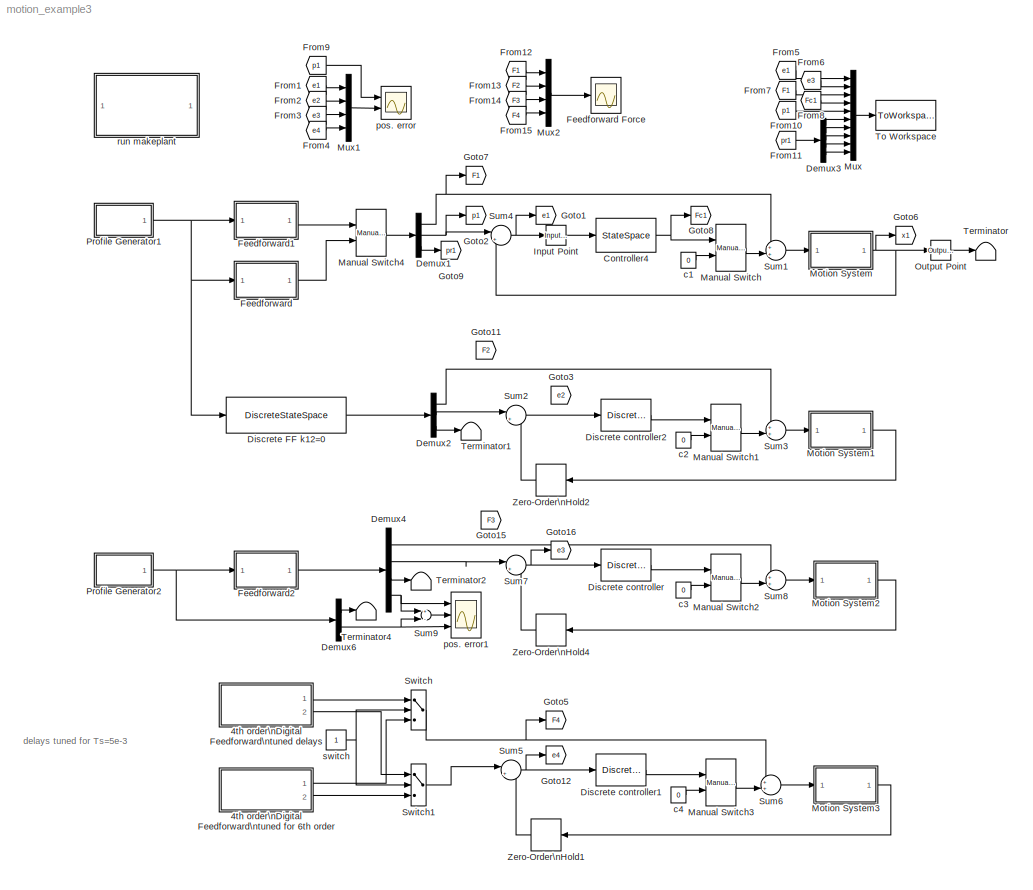
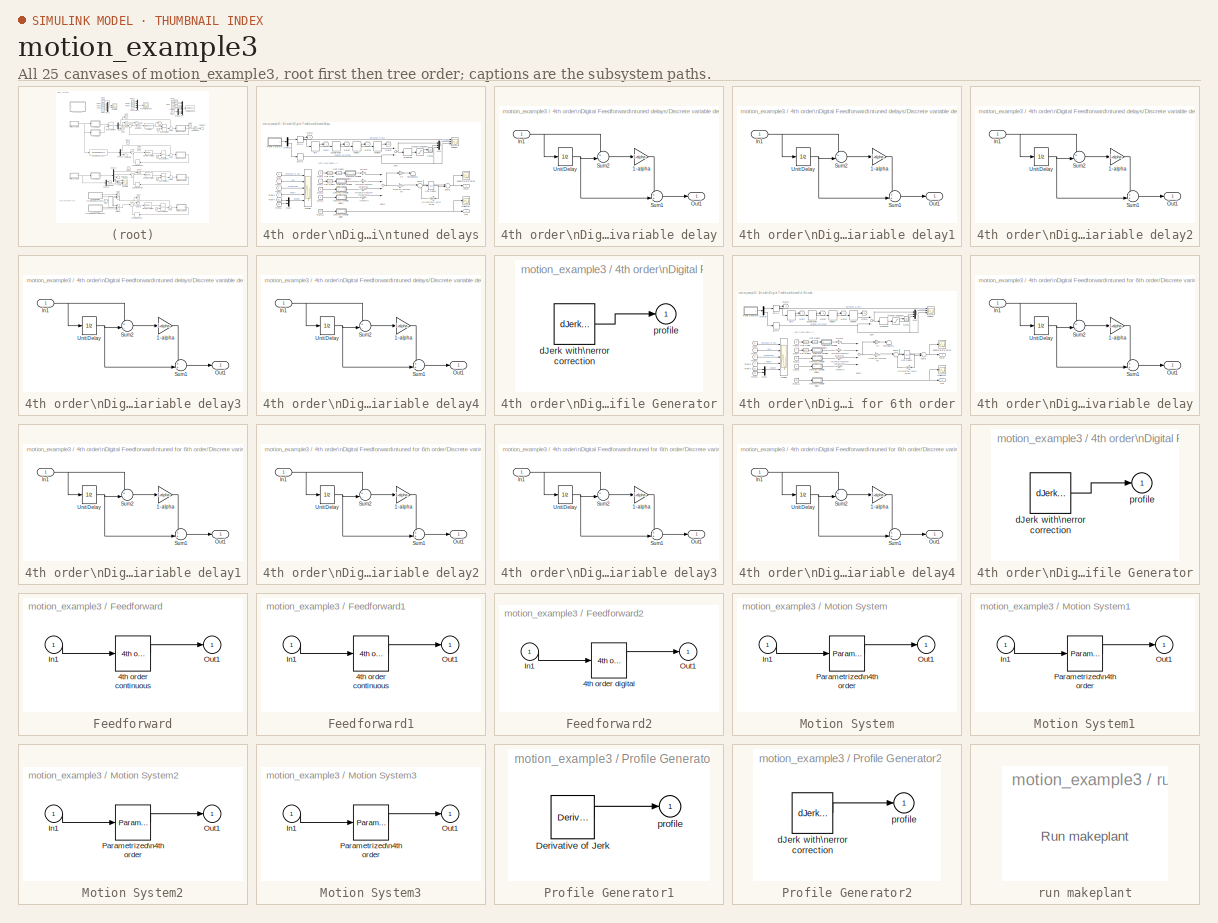
[diagram: thumbnail index - all 25 canvases of the model, root first then tree order]
MODEL motion_example3
KIND model
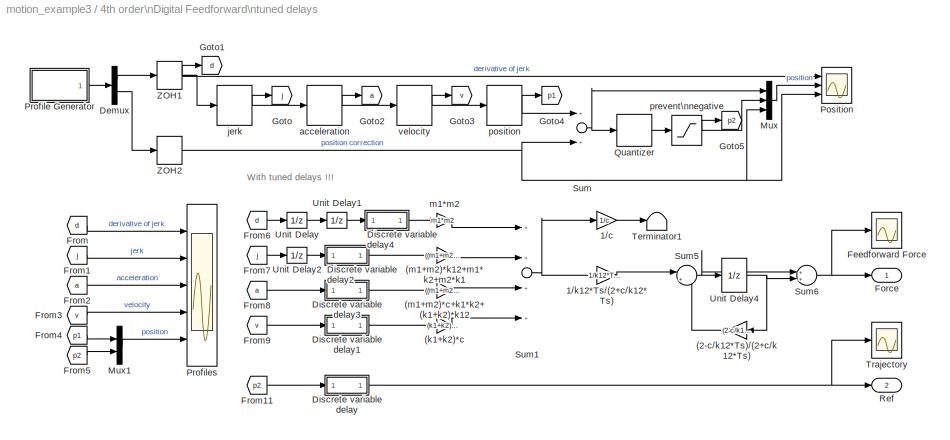
BLOCK [SubSystem] 4th order\nDigital Feedforward\ntuned delays
  Ports = [0, 2]
  RequestExecContextInheritance = off
  SID = 1
BLOCK [Gain] 4th order\nDigital Feedforward\ntuned delays/(2-c//k12*Ts)//(2+c//k12*Ts)
  Gain = (2-c/k12*Ts)/(2+c/k12*Ts)
  SID = 2
BLOCK [Gain] 4th order\nDigital Feedforward\ntuned delays/(k1+k2)*c
  Gain = (k1+k2)*c
  SID = 3
BLOCK [Gain] 4th order\nDigital Feedforward\ntuned delays/(m1+m2)*c+k1*k2+(k1+k2)*k12
  Gain = ((m1+m2)*c+k1*k2+(k1+k2)*k12)
  SID = 4
BLOCK [Gain] 4th order\nDigital Feedforward\ntuned delays/(m1+m2)*k12+m1*k2+m2*k1
  Gain = ((m1+m2)*k12+m1*k2+m2*k1)
  SID = 5
BLOCK [Gain] 4th order\nDigital Feedforward\ntuned delays/1//c
  Gain = 1/c
  SID = 6
BLOCK [Gain] 4th order\nDigital Feedforward\ntuned delays/1//k12*Ts//(2+c//k12*Ts)
  Gain = 1/k12*Ts/(2+c/k12*Ts)
  SID = 7
BLOCK [Demux] 4th order\nDigital Feedforward\ntuned delays/Demux
  Outputs = 2
  Ports = [1, 2]
  SID = 8
BLOCK [SubSystem] 4th order\nDigital Feedforward\ntuned delays/Discrete variable delay
  Ports = [1, 1]
  RequestExecContextInheritance = off
  SID = 9
BLOCK [Gain] 4th order\nDigital Feedforward\ntuned delays/Discrete variable delay/1-alpha
  Gain = 1-alpha
  SID = 11
BLOCK [Inport] 4th order\nDigital Feedforward\ntuned delays/Discrete variable delay/In1
  IconDisplay = Port number
  SID = 10
BLOCK [Outport] 4th order\nDigital Feedforward\ntuned delays/Discrete variable delay/Out1
  IconDisplay = Port number
  SID = 15
BLOCK [Sum] 4th order\nDigital Feedforward\ntuned delays/Discrete variable delay/Sum1
  IconShape = round
  Inputs = ++|
  Ports = [2, 1]
  SID = 12
BLOCK [Sum] 4th order\nDigital Feedforward\ntuned delays/Discrete variable delay/Sum2
  IconShape = round
  Inputs = +-|
  Ports = [2, 1]
  SID = 13
BLOCK [UnitDelay] 4th order\nDigital Feedforward\ntuned delays/Discrete variable delay/Unit Delay
  SID = 14
  SampleTime = Ts
BLOCK [SubSystem] 4th order\nDigital Feedforward\ntuned delays/Discrete variable delay1
  Ports = [1, 1]
  RequestExecContextInheritance = off
  SID = 16
BLOCK [Gain] 4th order\nDigital Feedforward\ntuned delays/Discrete variable delay1/1-alpha
  Gain = 1-alpha
  SID = 18
BLOCK [Inport] 4th order\nDigital Feedforward\ntuned delays/Discrete variable delay1/In1
  IconDisplay = Port number
  SID = 17
BLOCK [Outport] 4th order\nDigital Feedforward\ntuned delays/Discrete variable delay1/Out1
  IconDisplay = Port number
  SID = 22
BLOCK [Sum] 4th order\nDigital Feedforward\ntuned delays/Discrete variable delay1/Sum1
  IconShape = round
  Inputs = ++|
  Ports = [2, 1]
  SID = 19
BLOCK [Sum] 4th order\nDigital Feedforward\ntuned delays/Discrete variable delay1/Sum2
  IconShape = round
  Inputs = +-|
  Ports = [2, 1]
  SID = 20
BLOCK [UnitDelay] 4th order\nDigital Feedforward\ntuned delays/Discrete variable delay1/Unit Delay
  SID = 21
  SampleTime = Ts
BLOCK [SubSystem] 4th order\nDigital Feedforward\ntuned delays/Discrete variable delay2
  Ports = [1, 1]
  RequestExecContextInheritance = off
  SID = 23
BLOCK [Gain] 4th order\nDigital Feedforward\ntuned delays/Discrete variable delay2/1-alpha
  Gain = 1-alpha
  SID = 25
BLOCK [Inport] 4th order\nDigital Feedforward\ntuned delays/Discrete variable delay2/In1
  IconDisplay = Port number
  SID = 24
BLOCK [Outport] 4th order\nDigital Feedforward\ntuned delays/Discrete variable delay2/Out1
  IconDisplay = Port number
  SID = 29
BLOCK [Sum] 4th order\nDigital Feedforward\ntuned delays/Discrete variable delay2/Sum1
  IconShape = round
  Inputs = ++|
  Ports = [2, 1]
  SID = 26
BLOCK [Sum] 4th order\nDigital Feedforward\ntuned delays/Discrete variable delay2/Sum2
  IconShape = round
  Inputs = +-|
  Ports = [2, 1]
  SID = 27
BLOCK [UnitDelay] 4th order\nDigital Feedforward\ntuned delays/Discrete variable delay2/Unit Delay
  SID = 28
  SampleTime = Ts
BLOCK [SubSystem] 4th order\nDigital Feedforward\ntuned delays/Discrete variable delay3
  Ports = [1, 1]
  RequestExecContextInheritance = off
  SID = 30
BLOCK [Gain] 4th order\nDigital Feedforward\ntuned delays/Discrete variable delay3/1-alpha
  Gain = 1-alpha
  SID = 32
BLOCK [Inport] 4th order\nDigital Feedforward\ntuned delays/Discrete variable delay3/In1
  IconDisplay = Port number
  SID = 31
BLOCK [Outport] 4th order\nDigital Feedforward\ntuned delays/Discrete variable delay3/Out1
  IconDisplay = Port number
  SID = 36
BLOCK [Sum] 4th order\nDigital Feedforward\ntuned delays/Discrete variable delay3/Sum1
  IconShape = round
  Inputs = ++|
  Ports = [2, 1]
  SID = 33
BLOCK [Sum] 4th order\nDigital Feedforward\ntuned delays/Discrete variable delay3/Sum2
  IconShape = round
  Inputs = +-|
  Ports = [2, 1]
  SID = 34
BLOCK [UnitDelay] 4th order\nDigital Feedforward\ntuned delays/Discrete variable delay3/Unit Delay
  SID = 35
  SampleTime = Ts
BLOCK [SubSystem] 4th order\nDigital Feedforward\ntuned delays/Discrete variable delay4
  Ports = [1, 1]
  RequestExecContextInheritance = off
  SID = 37
BLOCK [Gain] 4th order\nDigital Feedforward\ntuned delays/Discrete variable delay4/1-alpha
  Gain = 1-alpha
  SID = 39
BLOCK [Inport] 4th order\nDigital Feedforward\ntuned delays/Discrete variable delay4/In1
  IconDisplay = Port number
  SID = 38
BLOCK [Outport] 4th order\nDigital Feedforward\ntuned delays/Discrete variable delay4/Out1
  IconDisplay = Port number
  SID = 43
BLOCK [Sum] 4th order\nDigital Feedforward\ntuned delays/Discrete variable delay4/Sum1
  IconShape = round
  Inputs = ++|
  Ports = [2, 1]
  SID = 40
BLOCK [Sum] 4th order\nDigital Feedforward\ntuned delays/Discrete variable delay4/Sum2
  IconShape = round
  Inputs = +-|
  Ports = [2, 1]
  SID = 41
BLOCK [UnitDelay] 4th order\nDigital Feedforward\ntuned delays/Discrete variable delay4/Unit Delay
  SID = 42
  SampleTime = Ts
BLOCK [Scope] 4th order\nDigital Feedforward\ntuned delays/Feedforward Force
  Floating = off
  NumInputPorts = 1
  Ports = [1]
  SID = 44
  ScopeSpecificationString = C++SS(StrPVP('Location','[70, 633, 425, 923]'),StrPVP('Open','off'),StrPVP('TickLabels','OneTimeTick'),StrPVP('ZoomMode','yonly'),MxPVP('AxesTitles',54,'struct(''axes1'',''%<SignalLabel>'')'),StrPVP('Grid','on'),StrPVP('TimeRange','3'),StrPVP('YMin','-150'),StrPVP('YMax','200'),StrPVP('SaveToWorkspace','off'),StrPVP('SaveName','ScopeData'),StrPVP('DataFormat','StructureWithTime'),StrPVP('LimitData...<+144ch>
BLOCK [Outport] 4th order\nDigital Feedforward\ntuned delays/Force
  IconDisplay = Port number
  SID = 86
BLOCK [From] 4th order\nDigital Feedforward\ntuned delays/From
  CloseFcn = tagdialog Close
  GotoTag = d
  SID = 45
BLOCK [From] 4th order\nDigital Feedforward\ntuned delays/From1
  CloseFcn = tagdialog Close
  GotoTag = j
  SID = 46
BLOCK [From] 4th order\nDigital Feedforward\ntuned delays/From11
  CloseFcn = tagdialog Close
  GotoTag = p2
  SID = 47
BLOCK [From] 4th order\nDigital Feedforward\ntuned delays/From2
  CloseFcn = tagdialog Close
  GotoTag = a
  SID = 48
BLOCK [From] 4th order\nDigital Feedforward\ntuned delays/From3
  CloseFcn = tagdialog Close
  GotoTag = v
  SID = 49
BLOCK [From] 4th order\nDigital Feedforward\ntuned delays/From4
  CloseFcn = tagdialog Close
  GotoTag = p1
  SID = 50
BLOCK [From] 4th order\nDigital Feedforward\ntuned delays/From5
  CloseFcn = tagdialog Close
  GotoTag = p2
  SID = 51
BLOCK [From] 4th order\nDigital Feedforward\ntuned delays/From6
  CloseFcn = tagdialog Close
  GotoTag = d
  SID = 52
BLOCK [From] 4th order\nDigital Feedforward\ntuned delays/From7
  CloseFcn = tagdialog Close
  GotoTag = j
  SID = 53
BLOCK [From] 4th order\nDigital Feedforward\ntuned delays/From8
  CloseFcn = tagdialog Close
  GotoTag = a
  SID = 54
BLOCK [From] 4th order\nDigital Feedforward\ntuned delays/From9
  CloseFcn = tagdialog Close
  GotoTag = v
  SID = 55
BLOCK [Goto] 4th order\nDigital Feedforward\ntuned delays/Goto
  GotoTag = j
  SID = 56
BLOCK [Goto] 4th order\nDigital Feedforward\ntuned delays/Goto1
  GotoTag = d
  SID = 57
BLOCK [Goto] 4th order\nDigital Feedforward\ntuned delays/Goto2
  GotoTag = a
  SID = 58
BLOCK [Goto] 4th order\nDigital Feedforward\ntuned delays/Goto3
  GotoTag = v
  SID = 59
BLOCK [Goto] 4th order\nDigital Feedforward\ntuned delays/Goto4
  GotoTag = p1
  SID = 60
BLOCK [Goto] 4th order\nDigital Feedforward\ntuned delays/Goto5
  GotoTag = p2
  SID = 61
BLOCK [Mux] 4th order\nDigital Feedforward\ntuned delays/Mux
  DisplayOption = bar
  Inputs = 3
  Ports = [3, 1]
  SID = 62
BLOCK [Mux] 4th order\nDigital Feedforward\ntuned delays/Mux1
  DisplayOption = bar
  Inputs = 2
  Ports = [2, 1]
  SID = 63
BLOCK [Scope] 4th order\nDigital Feedforward\ntuned delays/Position
  Floating = off
  NumInputPorts = 3
  Ports = [3]
  SID = 64
  ScopeSpecificationString = C++SS(StrPVP('Location','[604, 264, 973, 694]'),StrPVP('Open','off'),StrPVP('TickLabels','OneTimeTick'),StrPVP('ZoomMode','on'),MxPVP('AxesTitles',54,'struct(''axes1'',''%<SignalLabel>'',''axes2'',''%<SignalLabel>'',''axes3'',''%<SignalLabel>'')'),StrPVP('Grid','on'),StrPVP('TimeRange','3'),StrPVP('YMin','-1000~-0.5~-0.0004'),StrPVP('YMax','1000~1~0'),StrPVP('SaveToWorkspace','off'),StrPVP('SaveNa...<+220ch>
BLOCK [SubSystem] 4th order\nDigital Feedforward\ntuned delays/Profile Generator
  AttributesFormatString = %<BlockChoice>
  BlockChoice = dJerk with error correction
  MemberBlocks = Acceleration,Derivative of Jerk,Jerk,dJerk with error correction
  Ports = [0, 1]
  RequestExecContextInheritance = off
  SID = 65
  ShowPortLabels = none
  TemplateBlock = motion/Profile Generators/Profile Generator
BLOCK [Reference] 4th order\nDigital Feedforward\ntuned delays/Profile Generator/dJerk with\nerror correction  REF=motion/Profile Generators/dJerk with\nerror correction  (lib defined in mdl_0f46438c83f5)
  Ports = [0, 1]
  SID = 65::1
  SourceBlock = motion/Profile Generators/dJerk with\nerror correction
  SourceType = 4th Order Profile Generator with quantization error correction
  Ts = Ts
  a = a
  d = d
  j = j
  r = r
  s = s
  t0 = t0
  v = v
  x = x
BLOCK [Outport] 4th order\nDigital Feedforward\ntuned delays/Profile Generator/profile
  IconDisplay = Port number
  SID = 65::2
BLOCK [Scope] 4th order\nDigital Feedforward\ntuned delays/Profiles
  Floating = off
  NumInputPorts = 5
  Ports = [5]
  SID = 66
  ScopeSpecificationString = C++SS(StrPVP('Location','[476, 58, 845, 894]'),StrPVP('Open','off'),StrPVP('TickLabels','OneTimeTick'),StrPVP('ZoomMode','on'),MxPVP('AxesTitles',54,'struct(''axes1'',''%<SignalLabel>'',''axes2'',''%<SignalLabel>'',''axes3'',''%<SignalLabel>'',''axes4'',''%<SignalLabel>'',''axes5'',''%<SignalLabel>'')'),StrPVP('Grid','on'),StrPVP('TimeRange','3'),StrPVP('YMin','-1000~-50~-5~-7.49453e-017~0'),StrPV...<+292ch>
BLOCK [Quantizer] 4th order\nDigital Feedforward\ntuned delays/Quantizer
  QuantizationInterval = r
  SID = 67
BLOCK [Outport] 4th order\nDigital Feedforward\ntuned delays/Ref
  IconDisplay = Port number
  Port = 2
  SID = 87
BLOCK [Sum] 4th order\nDigital Feedforward\ntuned delays/Sum
  Ports = [2, 1]
  SID = 68
BLOCK [Sum] 4th order\nDigital Feedforward\ntuned delays/Sum1
  Inputs = ++++
  Ports = [4, 1]
  SID = 69
BLOCK [Sum] 4th order\nDigital Feedforward\ntuned delays/Sum5
  IconShape = round
  Inputs = |++
  Ports = [2, 1]
  SID = 70
BLOCK [Sum] 4th order\nDigital Feedforward\ntuned delays/Sum6
  IconShape = round
  Inputs = ++|
  Ports = [2, 1]
  SID = 71
BLOCK [Terminator] 4th order\nDigital Feedforward\ntuned delays/Terminator1
  SID = 72
BLOCK [Scope] 4th order\nDigital Feedforward\ntuned delays/Trajectory
  Floating = off
  NumInputPorts = 1
  Ports = [1]
  SID = 73
  ScopeSpecificationString = C++SS(StrPVP('Location','[39, 558, 408, 987]'),StrPVP('Open','off'),StrPVP('TickLabels','OneTimeTick'),StrPVP('ZoomMode','yonly'),MxPVP('AxesTitles',54,'struct(''axes1'',''%<SignalLabel>'')'),StrPVP('Grid','on'),StrPVP('TimeRange','3'),StrPVP('YMin','0'),StrPVP('YMax','1'),StrPVP('SaveToWorkspace','off'),StrPVP('SaveName','ScopeData7'),StrPVP('DataFormat','StructureWithTime'),StrPVP('LimitDataPoin...<+140ch>
BLOCK [UnitDelay] 4th order\nDigital Feedforward\ntuned delays/Unit Delay
  SID = 74
  SampleTime = Ts
BLOCK [UnitDelay] 4th order\nDigital Feedforward\ntuned delays/Unit Delay1
  SID = 75
  SampleTime = Ts
BLOCK [UnitDelay] 4th order\nDigital Feedforward\ntuned delays/Unit Delay2
  SID = 76
  SampleTime = Ts
BLOCK [UnitDelay] 4th order\nDigital Feedforward\ntuned delays/Unit Delay4
  SID = 77
  SampleTime = Ts
BLOCK [ZeroOrderHold] 4th order\nDigital Feedforward\ntuned delays/ZOH1
  SID = 78
  SampleTime = Ts
BLOCK [ZeroOrderHold] 4th order\nDigital Feedforward\ntuned delays/ZOH2
  SID = 79
  SampleTime = Ts
BLOCK [DiscreteIntegrator] 4th order\nDigital Feedforward\ntuned delays/acceleration
  ICPrevOutput = DiscIntNeverNeededParam
  ICPrevScaledInput = DiscIntNeverNeededParam
  Ports = [1, 1]
  SID = 80
  SampleTime = Ts
BLOCK [DiscreteIntegrator] 4th order\nDigital Feedforward\ntuned delays/jerk
  ICPrevOutput = DiscIntNeverNeededParam
  ICPrevScaledInput = DiscIntNeverNeededParam
  Ports = [1, 1]
  SID = 81
  SampleTime = Ts
BLOCK [Gain] 4th order\nDigital Feedforward\ntuned delays/m1*m2
  Gain = m1*m2
  SID = 82
BLOCK [DiscreteIntegrator] 4th order\nDigital Feedforward\ntuned delays/position
  ICPrevOutput = DiscIntNeverNeededParam
  ICPrevScaledInput = DiscIntNeverNeededParam
  Ports = [1, 1]
  SID = 83
  SampleTime = Ts
BLOCK [Saturate] 4th order\nDigital Feedforward\ntuned delays/prevent\nnegative 
  InputPortMap = u0
  LowerLimit = 0
  Ports = [1, 1]
  SID = 84
  UpperLimit = inf
BLOCK [DiscreteIntegrator] 4th order\nDigital Feedforward\ntuned delays/velocity
  ICPrevOutput = DiscIntNeverNeededParam
  ICPrevScaledInput = DiscIntNeverNeededParam
  Ports = [1, 1]
  SID = 85
  SampleTime = Ts
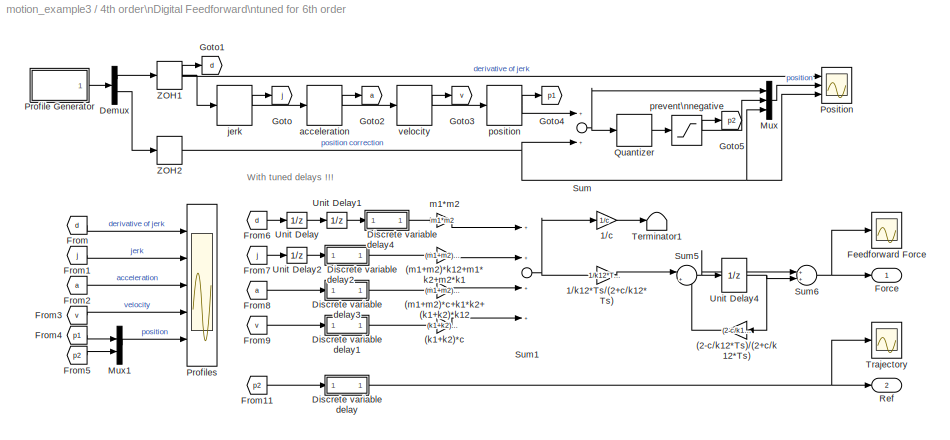
BLOCK [SubSystem] 4th order\nDigital Feedforward\ntuned for 6th order
  Ports = [0, 2]
  RequestExecContextInheritance = off
  SID = 89
BLOCK [Gain] 4th order\nDigital Feedforward\ntuned for 6th order/(2-c//k12*Ts)//(2+c//k12*Ts)
  Gain = (2-c/k12*Ts)/(2+c/k12*Ts)
  SID = 90
BLOCK [Gain] 4th order\nDigital Feedforward\ntuned for 6th order/(k1+k2)*c
  Gain = (k1+k2)*c
  SID = 91
BLOCK [Gain] 4th order\nDigital Feedforward\ntuned for 6th order/(m1+m2)*c+k1*k2+(k1+k2)*k12
  Gain = (m1+m2)*c+k1*k2+(k1+k2)*k12
  SID = 92
BLOCK [Gain] 4th order\nDigital Feedforward\ntuned for 6th order/(m1+m2)*k12+m1*k2+m2*k1
  Gain = (m1+m2)*k12+m1*k2+m2*k1
  SID = 93
BLOCK [Gain] 4th order\nDigital Feedforward\ntuned for 6th order/1//c
  Gain = 1/c
  SID = 94
BLOCK [Gain] 4th order\nDigital Feedforward\ntuned for 6th order/1//k12*Ts//(2+c//k12*Ts)
  Gain = 1/k12*Ts/(2+c/k12*Ts)
  SID = 95
BLOCK [Demux] 4th order\nDigital Feedforward\ntuned for 6th order/Demux
  Outputs = 2
  Ports = [1, 2]
  SID = 96
BLOCK [SubSystem] 4th order\nDigital Feedforward\ntuned for 6th order/Discrete variable delay
  Ports = [1, 1]
  RequestExecContextInheritance = off
  SID = 97
BLOCK [Gain] 4th order\nDigital Feedforward\ntuned for 6th order/Discrete variable delay/1-alpha
  Gain = 1-alpha
  SID = 99
BLOCK [Inport] 4th order\nDigital Feedforward\ntuned for 6th order/Discrete variable delay/In1
  IconDisplay = Port number
  SID = 98
BLOCK [Outport] 4th order\nDigital Feedforward\ntuned for 6th order/Discrete variable delay/Out1
  IconDisplay = Port number
  SID = 103
BLOCK [Sum] 4th order\nDigital Feedforward\ntuned for 6th order/Discrete variable delay/Sum1
  IconShape = round
  Inputs = ++|
  Ports = [2, 1]
  SID = 100
BLOCK [Sum] 4th order\nDigital Feedforward\ntuned for 6th order/Discrete variable delay/Sum2
  IconShape = round
  Inputs = +-|
  Ports = [2, 1]
  SID = 101
BLOCK [UnitDelay] 4th order\nDigital Feedforward\ntuned for 6th order/Discrete variable delay/Unit Delay
  SID = 102
  SampleTime = Ts
BLOCK [SubSystem] 4th order\nDigital Feedforward\ntuned for 6th order/Discrete variable delay1
  Ports = [1, 1]
  RequestExecContextInheritance = off
  SID = 104
BLOCK [Gain] 4th order\nDigital Feedforward\ntuned for 6th order/Discrete variable delay1/1-alpha
  Gain = 1-alpha
  SID = 106
BLOCK [Inport] 4th order\nDigital Feedforward\ntuned for 6th order/Discrete variable delay1/In1
  IconDisplay = Port number
  SID = 105
BLOCK [Outport] 4th order\nDigital Feedforward\ntuned for 6th order/Discrete variable delay1/Out1
  IconDisplay = Port number
  SID = 110
BLOCK [Sum] 4th order\nDigital Feedforward\ntuned for 6th order/Discrete variable delay1/Sum1
  IconShape = round
  Inputs = ++|
  Ports = [2, 1]
  SID = 107
BLOCK [Sum] 4th order\nDigital Feedforward\ntuned for 6th order/Discrete variable delay1/Sum2
  IconShape = round
  Inputs = +-|
  Ports = [2, 1]
  SID = 108
BLOCK [UnitDelay] 4th order\nDigital Feedforward\ntuned for 6th order/Discrete variable delay1/Unit Delay
  SID = 109
  SampleTime = Ts
BLOCK [SubSystem] 4th order\nDigital Feedforward\ntuned for 6th order/Discrete variable delay2
  Ports = [1, 1]
  RequestExecContextInheritance = off
  SID = 111
BLOCK [Gain] 4th order\nDigital Feedforward\ntuned for 6th order/Discrete variable delay2/1-alpha
  Gain = 1-alpha
  SID = 113
BLOCK [Inport] 4th order\nDigital Feedforward\ntuned for 6th order/Discrete variable delay2/In1
  IconDisplay = Port number
  SID = 112
BLOCK [Outport] 4th order\nDigital Feedforward\ntuned for 6th order/Discrete variable delay2/Out1
  IconDisplay = Port number
  SID = 117
BLOCK [Sum] 4th order\nDigital Feedforward\ntuned for 6th order/Discrete variable delay2/Sum1
  IconShape = round
  Inputs = ++|
  Ports = [2, 1]
  SID = 114
BLOCK [Sum] 4th order\nDigital Feedforward\ntuned for 6th order/Discrete variable delay2/Sum2
  IconShape = round
  Inputs = +-|
  Ports = [2, 1]
  SID = 115
BLOCK [UnitDelay] 4th order\nDigital Feedforward\ntuned for 6th order/Discrete variable delay2/Unit Delay
  SID = 116
  SampleTime = Ts
BLOCK [SubSystem] 4th order\nDigital Feedforward\ntuned for 6th order/Discrete variable delay3
  Ports = [1, 1]
  RequestExecContextInheritance = off
  SID = 118
BLOCK [Gain] 4th order\nDigital Feedforward\ntuned for 6th order/Discrete variable delay3/1-alpha
  Gain = 1-alpha
  SID = 120
BLOCK [Inport] 4th order\nDigital Feedforward\ntuned for 6th order/Discrete variable delay3/In1
  IconDisplay = Port number
  SID = 119
BLOCK [Outport] 4th order\nDigital Feedforward\ntuned for 6th order/Discrete variable delay3/Out1
  IconDisplay = Port number
  SID = 124
BLOCK [Sum] 4th order\nDigital Feedforward\ntuned for 6th order/Discrete variable delay3/Sum1
  IconShape = round
  Inputs = ++|
  Ports = [2, 1]
  SID = 121
BLOCK [Sum] 4th order\nDigital Feedforward\ntuned for 6th order/Discrete variable delay3/Sum2
  IconShape = round
  Inputs = +-|
  Ports = [2, 1]
  SID = 122
BLOCK [UnitDelay] 4th order\nDigital Feedforward\ntuned for 6th order/Discrete variable delay3/Unit Delay
  SID = 123
  SampleTime = Ts
BLOCK [SubSystem] 4th order\nDigital Feedforward\ntuned for 6th order/Discrete variable delay4
  Ports = [1, 1]
  RequestExecContextInheritance = off
  SID = 125
BLOCK [Gain] 4th order\nDigital Feedforward\ntuned for 6th order/Discrete variable delay4/1-alpha
  Gain = 1-alpha
  SID = 127
BLOCK [Inport] 4th order\nDigital Feedforward\ntuned for 6th order/Discrete variable delay4/In1
  IconDisplay = Port number
  SID = 126
BLOCK [Outport] 4th order\nDigital Feedforward\ntuned for 6th order/Discrete variable delay4/Out1
  IconDisplay = Port number
  SID = 131
BLOCK [Sum] 4th order\nDigital Feedforward\ntuned for 6th order/Discrete variable delay4/Sum1
  IconShape = round
  Inputs = ++|
  Ports = [2, 1]
  SID = 128
BLOCK [Sum] 4th order\nDigital Feedforward\ntuned for 6th order/Discrete variable delay4/Sum2
  IconShape = round
  Inputs = +-|
  Ports = [2, 1]
  SID = 129
BLOCK [UnitDelay] 4th order\nDigital Feedforward\ntuned for 6th order/Discrete variable delay4/Unit Delay
  SID = 130
  SampleTime = Ts
BLOCK [Scope] 4th order\nDigital Feedforward\ntuned for 6th order/Feedforward Force
  Floating = off
  NumInputPorts = 1
  Ports = [1]
  SID = 132
  ScopeSpecificationString = C++SS(StrPVP('Location','[70, 633, 425, 923]'),StrPVP('Open','off'),StrPVP('TickLabels','OneTimeTick'),StrPVP('ZoomMode','yonly'),MxPVP('AxesTitles',54,'struct(''axes1'',''%<SignalLabel>'')'),StrPVP('Grid','on'),StrPVP('TimeRange','3'),StrPVP('YMin','-150'),StrPVP('YMax','200'),StrPVP('SaveToWorkspace','off'),StrPVP('SaveName','ScopeData'),StrPVP('DataFormat','StructureWithTime'),StrPVP('LimitData...<+144ch>
BLOCK [Outport] 4th order\nDigital Feedforward\ntuned for 6th order/Force
  IconDisplay = Port number
  SID = 174
BLOCK [From] 4th order\nDigital Feedforward\ntuned for 6th order/From
  CloseFcn = tagdialog Close
  GotoTag = d
  SID = 133
BLOCK [From] 4th order\nDigital Feedforward\ntuned for 6th order/From1
  CloseFcn = tagdialog Close
  GotoTag = j
  SID = 134
BLOCK [From] 4th order\nDigital Feedforward\ntuned for 6th order/From11
  CloseFcn = tagdialog Close
  GotoTag = p2
  SID = 135
BLOCK [From] 4th order\nDigital Feedforward\ntuned for 6th order/From2
  CloseFcn = tagdialog Close
  GotoTag = a
  SID = 136
BLOCK [From] 4th order\nDigital Feedforward\ntuned for 6th order/From3
  CloseFcn = tagdialog Close
  GotoTag = v
  SID = 137
BLOCK [From] 4th order\nDigital Feedforward\ntuned for 6th order/From4
  CloseFcn = tagdialog Close
  GotoTag = p1
  SID = 138
BLOCK [From] 4th order\nDigital Feedforward\ntuned for 6th order/From5
  CloseFcn = tagdialog Close
  GotoTag = p2
  SID = 139
BLOCK [From] 4th order\nDigital Feedforward\ntuned for 6th order/From6
  CloseFcn = tagdialog Close
  GotoTag = d
  SID = 140
BLOCK [From] 4th order\nDigital Feedforward\ntuned for 6th order/From7
  CloseFcn = tagdialog Close
  GotoTag = j
  SID = 141
BLOCK [From] 4th order\nDigital Feedforward\ntuned for 6th order/From8
  CloseFcn = tagdialog Close
  GotoTag = a
  SID = 142
BLOCK [From] 4th order\nDigital Feedforward\ntuned for 6th order/From9
  CloseFcn = tagdialog Close
  GotoTag = v
  SID = 143
BLOCK [Goto] 4th order\nDigital Feedforward\ntuned for 6th order/Goto
  GotoTag = j
  SID = 144
BLOCK [Goto] 4th order\nDigital Feedforward\ntuned for 6th order/Goto1
  GotoTag = d
  SID = 145
BLOCK [Goto] 4th order\nDigital Feedforward\ntuned for 6th order/Goto2
  GotoTag = a
  SID = 146
BLOCK [Goto] 4th order\nDigital Feedforward\ntuned for 6th order/Goto3
  GotoTag = v
  SID = 147
BLOCK [Goto] 4th order\nDigital Feedforward\ntuned for 6th order/Goto4
  GotoTag = p1
  SID = 148
BLOCK [Goto] 4th order\nDigital Feedforward\ntuned for 6th order/Goto5
  GotoTag = p2
  SID = 149
BLOCK [Mux] 4th order\nDigital Feedforward\ntuned for 6th order/Mux
  DisplayOption = bar
  Inputs = 3
  Ports = [3, 1]
  SID = 150
BLOCK [Mux] 4th order\nDigital Feedforward\ntuned for 6th order/Mux1
  DisplayOption = bar
  Inputs = 2
  Ports = [2, 1]
  SID = 151
BLOCK [Scope] 4th order\nDigital Feedforward\ntuned for 6th order/Position
  Floating = off
  NumInputPorts = 3
  Ports = [3]
  SID = 152
  ScopeSpecificationString = C++SS(StrPVP('Location','[604, 264, 973, 694]'),StrPVP('Open','off'),StrPVP('TickLabels','OneTimeTick'),StrPVP('ZoomMode','on'),MxPVP('AxesTitles',54,'struct(''axes1'',''%<SignalLabel>'',''axes2'',''%<SignalLabel>'',''axes3'',''%<SignalLabel>'')'),StrPVP('Grid','on'),StrPVP('TimeRange','3'),StrPVP('YMin','-1000~-0.5~-0.0004'),StrPVP('YMax','1000~1~0'),StrPVP('SaveToWorkspace','off'),StrPVP('SaveNa...<+220ch>
BLOCK [SubSystem] 4th order\nDigital Feedforward\ntuned for 6th order/Profile Generator
  AttributesFormatString = %<BlockChoice>
  BlockChoice = dJerk with error correction
  MemberBlocks = Acceleration,Derivative of Jerk,Jerk,dJerk with error correction
  Ports = [0, 1]
  RequestExecContextInheritance = off
  SID = 153
  ShowPortLabels = none
  TemplateBlock = motion/Profile Generators/Profile Generator
BLOCK [Reference] 4th order\nDigital Feedforward\ntuned for 6th order/Profile Generator/dJerk with\nerror correction  REF=motion/Profile Generators/dJerk with\nerror correction  (lib defined in mdl_0f46438c83f5)
  Ports = [0, 1]
  SID = 153::1
  SourceBlock = motion/Profile Generators/dJerk with\nerror correction
  SourceType = 4th Order Profile Generator with quantization error correction
  Ts = Ts
  a = a
  d = d
  j = j
  r = r
  s = s
  t0 = t0
  v = v
  x = x
BLOCK [Outport] 4th order\nDigital Feedforward\ntuned for 6th order/Profile Generator/profile
  IconDisplay = Port number
  SID = 153::2
BLOCK [Scope] 4th order\nDigital Feedforward\ntuned for 6th order/Profiles
  Floating = off
  NumInputPorts = 5
  Ports = [5]
  SID = 154
  ScopeSpecificationString = C++SS(StrPVP('Location','[476, 58, 845, 894]'),StrPVP('Open','off'),StrPVP('TickLabels','OneTimeTick'),StrPVP('ZoomMode','on'),MxPVP('AxesTitles',54,'struct(''axes1'',''%<SignalLabel>'',''axes2'',''%<SignalLabel>'',''axes3'',''%<SignalLabel>'',''axes4'',''%<SignalLabel>'',''axes5'',''%<SignalLabel>'')'),StrPVP('Grid','on'),StrPVP('TimeRange','3'),StrPVP('YMin','-1000~-50~-5~-7.49453e-017~0'),StrPV...<+292ch>
BLOCK [Quantizer] 4th order\nDigital Feedforward\ntuned for 6th order/Quantizer
  QuantizationInterval = r
  SID = 155
BLOCK [Outport] 4th order\nDigital Feedforward\ntuned for 6th order/Ref
  IconDisplay = Port number
  Port = 2
  SID = 175
BLOCK [Sum] 4th order\nDigital Feedforward\ntuned for 6th order/Sum
  Ports = [2, 1]
  SID = 156
BLOCK [Sum] 4th order\nDigital Feedforward\ntuned for 6th order/Sum1
  Inputs = ++++
  Ports = [4, 1]
  SID = 157
BLOCK [Sum] 4th order\nDigital Feedforward\ntuned for 6th order/Sum5
  IconShape = round
  Inputs = |++
  Ports = [2, 1]
  SID = 158
BLOCK [Sum] 4th order\nDigital Feedforward\ntuned for 6th order/Sum6
  IconShape = round
  Inputs = ++|
  Ports = [2, 1]
  SID = 159
BLOCK [Terminator] 4th order\nDigital Feedforward\ntuned for 6th order/Terminator1
  SID = 160
BLOCK [Scope] 4th order\nDigital Feedforward\ntuned for 6th order/Trajectory
  Floating = off
  NumInputPorts = 1
  Ports = [1]
  SID = 161
  ScopeSpecificationString = C++SS(StrPVP('Location','[39, 558, 408, 987]'),StrPVP('Open','off'),StrPVP('TickLabels','OneTimeTick'),StrPVP('ZoomMode','yonly'),MxPVP('AxesTitles',54,'struct(''axes1'',''%<SignalLabel>'')'),StrPVP('Grid','on'),StrPVP('TimeRange','3'),StrPVP('YMin','0'),StrPVP('YMax','1'),StrPVP('SaveToWorkspace','off'),StrPVP('SaveName','ScopeData7'),StrPVP('DataFormat','StructureWithTime'),StrPVP('LimitDataPoin...<+140ch>
BLOCK [UnitDelay] 4th order\nDigital Feedforward\ntuned for 6th order/Unit Delay
  SID = 162
  SampleTime = Ts
BLOCK [UnitDelay] 4th order\nDigital Feedforward\ntuned for 6th order/Unit Delay1
  SID = 163
  SampleTime = Ts
BLOCK [UnitDelay] 4th order\nDigital Feedforward\ntuned for 6th order/Unit Delay2
  SID = 164
  SampleTime = Ts
BLOCK [UnitDelay] 4th order\nDigital Feedforward\ntuned for 6th order/Unit Delay4
  SID = 165
  SampleTime = Ts
BLOCK [ZeroOrderHold] 4th order\nDigital Feedforward\ntuned for 6th order/ZOH1
  SID = 166
  SampleTime = Ts
BLOCK [ZeroOrderHold] 4th order\nDigital Feedforward\ntuned for 6th order/ZOH2
  SID = 167
  SampleTime = Ts
BLOCK [DiscreteIntegrator] 4th order\nDigital Feedforward\ntuned for 6th order/acceleration
  ICPrevOutput = DiscIntNeverNeededParam
  ICPrevScaledInput = DiscIntNeverNeededParam
  Ports = [1, 1]
  SID = 168
  SampleTime = Ts
BLOCK [DiscreteIntegrator] 4th order\nDigital Feedforward\ntuned for 6th order/jerk
  ICPrevOutput = DiscIntNeverNeededParam
  ICPrevScaledInput = DiscIntNeverNeededParam
  Ports = [1, 1]
  SID = 169
  SampleTime = Ts
BLOCK [Gain] 4th order\nDigital Feedforward\ntuned for 6th order/m1*m2
  Gain = m1*m2
  SID = 170
BLOCK [DiscreteIntegrator] 4th order\nDigital Feedforward\ntuned for 6th order/position
  ICPrevOutput = DiscIntNeverNeededParam
  ICPrevScaledInput = DiscIntNeverNeededParam
  Ports = [1, 1]
  SID = 171
  SampleTime = Ts
BLOCK [Saturate] 4th order\nDigital Feedforward\ntuned for 6th order/prevent\nnegative 
  InputPortMap = u0
  LowerLimit = 0
  Ports = [1, 1]
  SID = 172
  UpperLimit = inf
BLOCK [DiscreteIntegrator] 4th order\nDigital Feedforward\ntuned for 6th order/velocity
  ICPrevOutput = DiscIntNeverNeededParam
  ICPrevScaledInput = DiscIntNeverNeededParam
  Ports = [1, 1]
  SID = 173
  SampleTime = Ts
BLOCK [StateSpace] Controller4
  A = Ac
  B = Bc
  C = Cc
  D = Dc
  InitialCondition = 0
  Ports = [1, 1]
  SID = 177
BLOCK [Demux] Demux1
  Outputs = [1 1 5]
  Ports = [1, 3]
  SID = 178
BLOCK [Demux] Demux2
  Outputs = [1 1 4]
  Ports = [1, 3]
  SID = 179
BLOCK [Demux] Demux3
  Outputs = 5
  Ports = [1, 5]
  SID = 180
BLOCK [Demux] Demux4
  Outputs = [1 1 4 1]
  Ports = [1, 4]
  SID = 181
BLOCK [Demux] Demux6
  Outputs = 2
  Ports = [1, 2]
  SID = 182
BLOCK [DiscreteStateSpace] Discrete FF k12=0
  A = Adff0
  B = Bdff0
  C = Cdff0
  D = Ddff0
  SID = 183
  SampleTime = Ts
BLOCK [DiscreteStateSpace] Discrete controller
  A = Acd
  B = Bcd*1.4
  C = Ccd
  D = Ddd
  SID = 184
  SampleTime = Ts
BLOCK [DiscreteStateSpace] Discrete controller1
  A = Acd
  B = Bcd*1.4
  C = Ccd
  D = Ddd
  SID = 185
  SampleTime = Ts
BLOCK [DiscreteStateSpace] Discrete controller2
  A = Acd
  B = Bcd*1.4
  C = Ccd
  D = Ddd
  SID = 186
  SampleTime = Ts
BLOCK [SubSystem] Feedforward
  AttributesFormatString = %<BlockChoice>
  BlockChoice = 4th order continuous
  MemberBlocks = 2nd order continuous,2nd order discrete,3d order continuous,3d order discrete,4th order continuous,4th order digital,4th order discrete
  Ports = [1, 1]
  RequestExecContextInheritance = off
  SID = 187
  ShowPortLabels = none
  TemplateBlock = motion/Feedforward Controllers/Feedforward
BLOCK [Scope] Feedforward Force
  Floating = off
  NumInputPorts = 1
  Ports = [1]
  SID = 188
  ScopeSpecificationString = C++SS(StrPVP('Location','[883, 688, 1238, 980]'),StrPVP('Open','off'),StrPVP('TickLabels','OneTimeTick'),StrPVP('ZoomMode','on'),MxPVP('AxesTitles',54,'struct(''axes1'',''%<SignalLabel>'')'),StrPVP('Grid','on'),StrPVP('TimeRange','3'),StrPVP('YMin','-100'),StrPVP('YMax','300'),StrPVP('SaveToWorkspace','off'),StrPVP('SaveName','ScopeData7'),StrPVP('DataFormat','StructureWithTime'),StrPVP('LimitData...<+144ch>
BLOCK [Reference] Feedforward/4th order continuous  REF=motion/Feedforward Controllers/4th order continuous  (lib defined in mdl_0f46438c83f5)
  Ports = [1, 1]
  SID = 187::2
  SourceBlock = motion/Feedforward Controllers/4th order continuous
  SourceType = Continuous Time Feedforward
  c = 6e5
  k1 = 10
  k12 = 500
  k2 = 10
  m1 = 20
  m2 = 10
BLOCK [Inport] Feedforward/In1
  IconDisplay = Port number
  SID = 187::1
BLOCK [Outport] Feedforward/Out1
  IconDisplay = Port number
  SID = 187::3
BLOCK [SubSystem] Feedforward1
  AttributesFormatString = %<BlockChoice>
  BlockChoice = 4th order continuous
  MemberBlocks = 2nd order continuous,2nd order discrete,3d order continuous,3d order discrete,4th order continuous,4th order digital,4th order discrete
  Ports = [1, 1]
  RequestExecContextInheritance = off
  SID = 189
  ShowPortLabels = none
  TemplateBlock = motion/Feedforward Controllers/Feedforward
BLOCK [Reference] Feedforward1/4th order continuous  REF=motion/Feedforward Controllers/4th order continuous  (lib defined in mdl_0f46438c83f5)
  Ports = [1, 1]
  SID = 189::2
  SourceBlock = motion/Feedforward Controllers/4th order continuous
  SourceType = Continuous Time Feedforward
  c = 6e5
  k1 = 10
  k12 = 500
  k2 = 10
  m1 = 20
  m2 = 10
BLOCK [Inport] Feedforward1/In1
  IconDisplay = Port number
  SID = 189::1
BLOCK [Outport] Feedforward1/Out1
  IconDisplay = Port number
  SID = 189::3
BLOCK [SubSystem] Feedforward2
  AttributesFormatString = %<BlockChoice>
  BlockChoice = 4th order digital
  MemberBlocks = 2nd order continuous,2nd order discrete,3d order continuous,3d order discrete,4th order continuous,4th order digital,4th order discrete
  Ports = [1, 1]
  RequestExecContextInheritance = off
  SID = 190
  ShowPortLabels = none
  TemplateBlock = motion/Feedforward Controllers/Feedforward
BLOCK [Reference] Feedforward2/4th order digital  REF=motion/Feedforward Controllers/4th order digital  (lib defined in mdl_0f46438c83f5)
  Ports = [1, 1]
  SID = 190::2
  SourceBlock = motion/Feedforward Controllers/4th order digital
  SourceType = Digital Feedforward
  Ts = Ts
  c = 6e5
  k1 = 10
  k12 = 500
  k2 = 10
  m1 = 20
  m2 = 10
  r = 1e-3
BLOCK [Inport] Feedforward2/In1
  IconDisplay = Port number
  SID = 190::1
BLOCK [Outport] Feedforward2/Out1
  IconDisplay = Port number
  SID = 190::3
BLOCK [From] From1
  CloseFcn = tagdialog Close
  GotoTag = e1
  SID = 191
BLOCK [From] From10
  CloseFcn = tagdialog Close
  GotoTag = p1
  SID = 192
BLOCK [From] From11
  CloseFcn = tagdialog Close
  GotoTag = pr1
  SID = 193
BLOCK [From] From12
  CloseFcn = tagdialog Close
  GotoTag = F1
  SID = 194
BLOCK [From] From13
  CloseFcn = tagdialog Close
  GotoTag = F2
  SID = 195
BLOCK [From] From14
  CloseFcn = tagdialog Close
  GotoTag = F3
  SID = 196
BLOCK [From] From15
  CloseFcn = tagdialog Close
  GotoTag = F4
  SID = 197
BLOCK [From] From2
  CloseFcn = tagdialog Close
  GotoTag = e2
  SID = 198
BLOCK [From] From3
  CloseFcn = tagdialog Close
  GotoTag = e3
  SID = 199
BLOCK [From] From4
  CloseFcn = tagdialog Close
  GotoTag = e4
  SID = 200
BLOCK [From] From5
  CloseFcn = tagdialog Close
  GotoTag = e1
  SID = 201
BLOCK [From] From6
  CloseFcn = tagdialog Close
  GotoTag = e3
  SID = 202
BLOCK [From] From7
  CloseFcn = tagdialog Close
  GotoTag = F1
  SID = 203
BLOCK [From] From8
  CloseFcn = tagdialog Close
  GotoTag = Fc1
  SID = 204
BLOCK [From] From9
  CloseFcn = tagdialog Close
  GotoTag = p1
  SID = 205
BLOCK [Goto] Goto1
  GotoTag = e1
  SID = 206
BLOCK [Goto] Goto11
  GotoTag = F2
  SID = 207
BLOCK [Goto] Goto12
  GotoTag = e4
  SID = 208
BLOCK [Goto] Goto15
  GotoTag = F3
  SID = 209
BLOCK [Goto] Goto16
  GotoTag = e3
  SID = 210
BLOCK [Goto] Goto2
  GotoTag = p1
  SID = 211
BLOCK [Goto] Goto3
  GotoTag = e2
  SID = 212
BLOCK [Goto] Goto5
  GotoTag = F4
  SID = 213
BLOCK [Goto] Goto6
  GotoTag = x1
  SID = 214
BLOCK [Goto] Goto7
  GotoTag = F1
  SID = 215
BLOCK [Goto] Goto8
  GotoTag = Fc1
  SID = 216
BLOCK [Goto] Goto9
  GotoTag = pr1
  SID = 217
BLOCK [Reference] Input Point  REF=cstblocks/Input Point
  Ports = [1, 1]
  SID = 218
  SourceBlock = cstblocks/Input Point
  SourceProductBaseCode = CT
  SourceProductName = Control System Toolbox
  SourceType = InputPoint
BLOCK [Reference] Manual Switch  REF=simulink3/Nonlinear/Manual Switch
  Ports = [2, 1]
  SID = 219
  SourceBlock = simulink3/Nonlinear/Manual Switch
  SourceProductBaseCode = SL
  SourceProductName = Simulink
  SourceType = Manual Switch
  action = 0
  sw = 0
BLOCK [Reference] Manual Switch1  REF=simulink3/Nonlinear/Manual Switch
  Ports = [2, 1]
  SID = 220
  SourceBlock = simulink3/Nonlinear/Manual Switch
  SourceProductBaseCode = SL
  SourceProductName = Simulink
  SourceType = Manual Switch
  action = 0
  sw = 0
BLOCK [Reference] Manual Switch2  REF=simulink3/Nonlinear/Manual Switch
  Ports = [2, 1]
  SID = 221
  SourceBlock = simulink3/Nonlinear/Manual Switch
  SourceProductBaseCode = SL
  SourceProductName = Simulink
  SourceType = Manual Switch
  action = 0
  sw = 0
BLOCK [Reference] Manual Switch3  REF=simulink3/Nonlinear/Manual Switch
  Ports = [2, 1]
  SID = 222
  SourceBlock = simulink3/Nonlinear/Manual Switch
  SourceProductBaseCode = SL
  SourceProductName = Simulink
  SourceType = Manual Switch
  action = 0
  sw = 0
BLOCK [Reference] Manual Switch4  REF=simulink3/Nonlinear/Manual Switch
  Ports = [2, 1]
  SID = 223
  SourceBlock = simulink3/Nonlinear/Manual Switch
  SourceProductBaseCode = SL
  SourceProductName = Simulink
  SourceType = Manual Switch
  action = 0
  sw = 0
BLOCK [SubSystem] Motion System
  AttributesFormatString = %<BlockChoice>
  BlockChoice = Parametrized 4th order
  MemberBlocks = 2nd order,4th order,6th order,Parametrized 4th order
  Ports = [1, 1]
  RequestExecContextInheritance = off
  SID = 224
  ShowPortLabels = none
  TemplateBlock = motion/Motion Systems1/Motion System
BLOCK [Inport] Motion System/In1
  IconDisplay = Port number
  SID = 224::1
BLOCK [Outport] Motion System/Out1
  IconDisplay = Port number
  SID = 224::3
BLOCK [Reference] Motion System/Parametrized\n4th order  REF=motion/Motion Systems1/Parametrized\n4th order  (lib defined in mdl_0f46438c83f5)
  Ports = [1, 1]
  SID = 224::2
  SourceBlock = motion/Motion Systems1/Parametrized\n4th order
  SourceType = Parametrized 4th order motion system model
  c = 6e5
  k1 = 10
  k12 = 500
  k2 = 10
  m1 = 20
  m2 = 10
BLOCK [SubSystem] Motion System1
  AttributesFormatString = %<BlockChoice>
  BlockChoice = Parametrized 4th order
  MemberBlocks = 2nd order,4th order,6th order,Parametrized 4th order
  Ports = [1, 1]
  RequestExecContextInheritance = off
  SID = 225
  ShowPortLabels = none
  TemplateBlock = motion/Motion Systems1/Motion System
BLOCK [Inport] Motion System1/In1
  IconDisplay = Port number
  SID = 225::1
BLOCK [Outport] Motion System1/Out1
  IconDisplay = Port number
  SID = 225::3
BLOCK [Reference] Motion System1/Parametrized\n4th order  REF=motion/Motion Systems1/Parametrized\n4th order  (lib defined in mdl_0f46438c83f5)
  Ports = [1, 1]
  SID = 225::2
  SourceBlock = motion/Motion Systems1/Parametrized\n4th order
  SourceType = Parametrized 4th order motion system model
  c = 6e5
  k1 = 10
  k12 = 500
  k2 = 10
  m1 = 20
  m2 = 10
BLOCK [SubSystem] Motion System2
  AttributesFormatString = %<BlockChoice>
  BlockChoice = Parametrized 4th order
  MemberBlocks = 2nd order,4th order,6th order,Parametrized 4th order
  Ports = [1, 1]
  RequestExecContextInheritance = off
  SID = 226
  ShowPortLabels = none
  TemplateBlock = motion/Motion Systems1/Motion System
BLOCK [Inport] Motion System2/In1
  IconDisplay = Port number
  SID = 226::1
BLOCK [Outport] Motion System2/Out1
  IconDisplay = Port number
  SID = 226::3
BLOCK [Reference] Motion System2/Parametrized\n4th order  REF=motion/Motion Systems1/Parametrized\n4th order  (lib defined in mdl_0f46438c83f5)
  Ports = [1, 1]
  SID = 226::2
  SourceBlock = motion/Motion Systems1/Parametrized\n4th order
  SourceType = Parametrized 4th order motion system model
  c = 6e5
  k1 = 10
  k12 = 500
  k2 = 10
  m1 = 20
  m2 = 10
BLOCK [SubSystem] Motion System3
  AttributesFormatString = %<BlockChoice>
  BlockChoice = Parametrized 4th order
  MemberBlocks = 2nd order,4th order,6th order,Parametrized 4th order
  Ports = [1, 1]
  RequestExecContextInheritance = off
  SID = 227
  ShowPortLabels = none
  TemplateBlock = motion/Motion Systems1/Motion System
BLOCK [Inport] Motion System3/In1
  IconDisplay = Port number
  SID = 227::1
BLOCK [Outport] Motion System3/Out1
  IconDisplay = Port number
  SID = 227::3
BLOCK [Reference] Motion System3/Parametrized\n4th order  REF=motion/Motion Systems1/Parametrized\n4th order  (lib defined in mdl_0f46438c83f5)
  Ports = [1, 1]
  SID = 227::2
  SourceBlock = motion/Motion Systems1/Parametrized\n4th order
  SourceType = Parametrized 4th order motion system model
  c = 6e5
  k1 = 10
  k12 = 500
  k2 = 10
  m1 = 20
  m2 = 10
BLOCK [Mux] Mux
  DisplayOption = bar
  Inputs = 10
  Ports = [10, 1]
  SID = 228
BLOCK [Mux] Mux1
  DisplayOption = bar
  Ports = [4, 1]
  SID = 229
BLOCK [Mux] Mux2
  DisplayOption = bar
  Ports = [4, 1]
  SID = 230
BLOCK [Reference] Output Point  REF=cstblocks/Output Point
  Ports = [1, 1]
  SID = 231
  SourceBlock = cstblocks/Output Point
  SourceProductBaseCode = CT
  SourceProductName = Control System Toolbox
  SourceType = OutputPoint
BLOCK [SubSystem] Profile Generator1
  AttributesFormatString = %<BlockChoice>
  BlockChoice = Derivative of Jerk
  MemberBlocks = Acceleration,Derivative of Jerk,Jerk,dJerk with error correction
  Ports = [0, 1]
  RequestExecContextInheritance = off
  SID = 232
  ShowPortLabels = none
  TemplateBlock = motion/Profile Generators/Profile Generator
BLOCK [Reference] Profile Generator1/Derivative of Jerk  REF=motion/Profile Generators/Derivative of Jerk  (lib defined in mdl_0f46438c83f5)
  Ports = [0, 1]
  SID = 232::1
  SourceBlock = motion/Profile Generators/Derivative of Jerk
  SourceType = 4th Order Profile Generator
  Ts = Ts
  a = 5
  d = 1000
  j = 50
  t0 = .3
  v = 1
  x = 1
BLOCK [Outport] Profile Generator1/profile
  IconDisplay = Port number
  SID = 232::2
BLOCK [SubSystem] Profile Generator2
  AttributesFormatString = %<BlockChoice>
  BlockChoice = dJerk with error correction
  MemberBlocks = Acceleration,Derivative of Jerk,Jerk,dJerk with error correction
  Ports = [0, 1]
  RequestExecContextInheritance = off
  SID = 233
  ShowPortLabels = none
  TemplateBlock = motion/Profile Generators/Profile Generator
BLOCK [Reference] Profile Generator2/dJerk with\nerror correction  REF=motion/Profile Generators/dJerk with\nerror correction  (lib defined in mdl_0f46438c83f5)
  Ports = [0, 1]
  SID = 233::1
  SourceBlock = motion/Profile Generators/dJerk with\nerror correction
  SourceType = 4th Order Profile Generator with quantization error correction
  Ts = Ts
  a = 5
  d = 1000
  j = 50
  r = 1e-3
  s = 2
  t0 = .3
  v = 1
  x = 1
BLOCK [Outport] Profile Generator2/profile
  IconDisplay = Port number
  SID = 233::2
BLOCK [Sum] Sum1
  IconShape = round
  Inputs = ++|
  Ports = [2, 1]
  SID = 234
BLOCK [Sum] Sum2
  IconShape = round
  Inputs = |+-
  Ports = [2, 1]
  SID = 235
BLOCK [Sum] Sum3
  IconShape = round
  Inputs = ++|
  Ports = [2, 1]
  SID = 236
BLOCK [Sum] Sum4
  IconShape = round
  Inputs = |+-
  Ports = [2, 1]
  SID = 237
BLOCK [Sum] Sum5
  IconShape = round
  Inputs = |+-
  Ports = [2, 1]
  SID = 238
BLOCK [Sum] Sum6
  IconShape = round
  Inputs = ++|
  Ports = [2, 1]
  SID = 239
BLOCK [Sum] Sum7
  IconShape = round
  Inputs = |+-
  Ports = [2, 1]
  SID = 240
BLOCK [Sum] Sum8
  IconShape = round
  Inputs = ++|
  Ports = [2, 1]
  SID = 241
BLOCK [Sum] Sum9
  Inputs = +-
  Ports = [2, 1]
  SID = 242
BLOCK [Switch] Switch
  SID = 243
  Threshold = .5
BLOCK [Switch] Switch1
  SID = 244
  Threshold = .5
BLOCK [Terminator] Terminator
  SID = 245
BLOCK [Terminator] Terminator1
  SID = 246
BLOCK [Terminator] Terminator2
  SID = 247
BLOCK [Terminator] Terminator4
  SID = 248
BLOCK [ToWorkspace] To Workspace
  MaxDataPoints = inf
  Ports = [1]
  SID = 249
  SampleTime = 2e-4
  SaveFormat = Structure With Time
  VariableName = y
BLOCK [ZeroOrderHold] Zero-Order\nHold1
  SID = 250
  SampleTime = Ts
BLOCK [ZeroOrderHold] Zero-Order\nHold2
  SID = 251
  SampleTime = Ts
BLOCK [ZeroOrderHold] Zero-Order\nHold4
  SID = 252
  SampleTime = Ts
BLOCK [Constant] c1
  SID = 253
  Value = 0
BLOCK [Constant] c2
  SID = 254
  Value = 0
BLOCK [Constant] c3
  SID = 255
  Value = 0
BLOCK [Constant] c4
  SID = 256
  Value = 0
BLOCK [Scope] pos. error
  Floating = off
  NumInputPorts = 2
  Ports = [2]
  SID = 257
  ScopeSpecificationString = C++SS(StrPVP('Location','[861, 67, 1275, 531]'),StrPVP('Open','on'),StrPVP('TickLabels','OneTimeTick'),StrPVP('ZoomMode','yonly'),MxPVP('AxesTitles',54,'struct(''axes1'',''Position'',''axes2'',''Position Error'')'),StrPVP('Grid','on'),StrPVP('TimeRange','3'),StrPVP('YMin','0~-8.89489e-008'),StrPVP('YMax','1.1~1.0697e-007'),StrPVP('SaveToWorkspace','off'),StrPVP('SaveName','ScopeData4'),StrPVP('Dat...<+193ch>
BLOCK [Scope] pos. error1
  Floating = off
  NumInputPorts = 3
  Ports = [3]
  SID = 258
  ScopeSpecificationString = C++SS(StrPVP('Location','[855, 554, 1269, 1018]'),StrPVP('Open','on'),StrPVP('TickLabels','OneTimeTick'),StrPVP('ZoomMode','on'),MxPVP('AxesTitles',54,'struct(''axes1'',''Corrected Position'',''axes2'',''Position'',''axes3'',''Correction'')'),StrPVP('Grid','on'),StrPVP('TimeRange','3'),StrPVP('YMin','0~0~-0.006'),StrPVP('YMax','1~1.5~0'),StrPVP('SaveToWorkspace','off'),StrPVP('SaveName','ScopeData...<+208ch>
BLOCK [SubSystem] run makeplant
  ClipboardFcn = edit makeplant
  MoveFcn = edit makeplant
  OpenFcn = makeplant
  Ports = []
  RequestExecContextInheritance = off
  SID = 259
BLOCK [Constant] switch
  SID = 261
ANNOTATION (root): delays tuned for Ts=5e-3
ANNOTATION 4th order\nDigital Feedforward\ntuned delays: With tuned delays !!!
ANNOTATION 4th order\nDigital Feedforward\ntuned for 6th order: With tuned delays !!!
ANNOTATION run makeplant: Run makeplant
LINE 4th order\nDigital Feedforward\ntuned delays/(2-c//k12*Ts)//(2+c//k12*Ts):1 -> 4th order\nDigital Feedforward\ntuned delays/Sum5:2
LINE 4th order\nDigital Feedforward\ntuned delays/(k1+k2)*c:1 -> 4th order\nDigital Feedforward\ntuned delays/Sum1:4
LINE 4th order\nDigital Feedforward\ntuned delays/(m1+m2)*c+k1*k2+(k1+k2)*k12:1 -> 4th order\nDigital Feedforward\ntuned delays/Sum1:3
LINE 4th order\nDigital Feedforward\ntuned delays/(m1+m2)*k12+m1*k2+m2*k1:1 -> 4th order\nDigital Feedforward\ntuned delays/Sum1:2
LINE 4th order\nDigital Feedforward\ntuned delays/1//c:1 -> 4th order\nDigital Feedforward\ntuned delays/Terminator1:1
LINE 4th order\nDigital Feedforward\ntuned delays/1//k12*Ts//(2+c//k12*Ts):1 -> 4th order\nDigital Feedforward\ntuned delays/Sum5:1
LINE 4th order\nDigital Feedforward\ntuned delays/Demux:1 -> 4th order\nDigital Feedforward\ntuned delays/ZOH1:1
LINE 4th order\nDigital Feedforward\ntuned delays/Demux:2 -> 4th order\nDigital Feedforward\ntuned delays/ZOH2:1
LINE 4th order\nDigital Feedforward\ntuned delays/Discrete variable delay/1-alpha:1 -> 4th order\nDigital Feedforward\ntuned delays/Discrete variable delay/Sum1:1
NET 4th order\nDigital Feedforward\ntuned delays/Discrete variable delay/In1:1 -> 4th order\nDigital Feedforward\ntuned delays/Discrete variable delay/Sum2:1, 4th order\nDigital Feedforward\ntuned delays/Discrete variable delay/Unit Delay:1
LINE 4th order\nDigital Feedforward\ntuned delays/Discrete variable delay/Sum1:1 -> 4th order\nDigital Feedforward\ntuned delays/Discrete variable delay/Out1:1
LINE 4th order\nDigital Feedforward\ntuned delays/Discrete variable delay/Sum2:1 -> 4th order\nDigital Feedforward\ntuned delays/Discrete variable delay/1-alpha:1
NET 4th order\nDigital Feedforward\ntuned delays/Discrete variable delay/Unit Delay:1 -> 4th order\nDigital Feedforward\ntuned delays/Discrete variable delay/Sum1:2, 4th order\nDigital Feedforward\ntuned delays/Discrete variable delay/Sum2:2
LINE 4th order\nDigital Feedforward\ntuned delays/Discrete variable delay1/1-alpha:1 -> 4th order\nDigital Feedforward\ntuned delays/Discrete variable delay1/Sum1:1
NET 4th order\nDigital Feedforward\ntuned delays/Discrete variable delay1/In1:1 -> 4th order\nDigital Feedforward\ntuned delays/Discrete variable delay1/Sum2:1, 4th order\nDigital Feedforward\ntuned delays/Discrete variable delay1/Unit Delay:1
LINE 4th order\nDigital Feedforward\ntuned delays/Discrete variable delay1/Sum1:1 -> 4th order\nDigital Feedforward\ntuned delays/Discrete variable delay1/Out1:1
LINE 4th order\nDigital Feedforward\ntuned delays/Discrete variable delay1/Sum2:1 -> 4th order\nDigital Feedforward\ntuned delays/Discrete variable delay1/1-alpha:1
NET 4th order\nDigital Feedforward\ntuned delays/Discrete variable delay1/Unit Delay:1 -> 4th order\nDigital Feedforward\ntuned delays/Discrete variable delay1/Sum1:2, 4th order\nDigital Feedforward\ntuned delays/Discrete variable delay1/Sum2:2
LINE 4th order\nDigital Feedforward\ntuned delays/Discrete variable delay1:1 -> 4th order\nDigital Feedforward\ntuned delays/(k1+k2)*c:1
LINE 4th order\nDigital Feedforward\ntuned delays/Discrete variable delay2/1-alpha:1 -> 4th order\nDigital Feedforward\ntuned delays/Discrete variable delay2/Sum1:1
NET 4th order\nDigital Feedforward\ntuned delays/Discrete variable delay2/In1:1 -> 4th order\nDigital Feedforward\ntuned delays/Discrete variable delay2/Sum2:1, 4th order\nDigital Feedforward\ntuned delays/Discrete variable delay2/Unit Delay:1
LINE 4th order\nDigital Feedforward\ntuned delays/Discrete variable delay2/Sum1:1 -> 4th order\nDigital Feedforward\ntuned delays/Discrete variable delay2/Out1:1
LINE 4th order\nDigital Feedforward\ntuned delays/Discrete variable delay2/Sum2:1 -> 4th order\nDigital Feedforward\ntuned delays/Discrete variable delay2/1-alpha:1
NET 4th order\nDigital Feedforward\ntuned delays/Discrete variable delay2/Unit Delay:1 -> 4th order\nDigital Feedforward\ntuned delays/Discrete variable delay2/Sum1:2, 4th order\nDigital Feedforward\ntuned delays/Discrete variable delay2/Sum2:2
LINE 4th order\nDigital Feedforward\ntuned delays/Discrete variable delay2:1 -> 4th order\nDigital Feedforward\ntuned delays/(m1+m2)*k12+m1*k2+m2*k1:1
LINE 4th order\nDigital Feedforward\ntuned delays/Discrete variable delay3/1-alpha:1 -> 4th order\nDigital Feedforward\ntuned delays/Discrete variable delay3/Sum1:1
NET 4th order\nDigital Feedforward\ntuned delays/Discrete variable delay3/In1:1 -> 4th order\nDigital Feedforward\ntuned delays/Discrete variable delay3/Sum2:1, 4th order\nDigital Feedforward\ntuned delays/Discrete variable delay3/Unit Delay:1
LINE 4th order\nDigital Feedforward\ntuned delays/Discrete variable delay3/Sum1:1 -> 4th order\nDigital Feedforward\ntuned delays/Discrete variable delay3/Out1:1
LINE 4th order\nDigital Feedforward\ntuned delays/Discrete variable delay3/Sum2:1 -> 4th order\nDigital Feedforward\ntuned delays/Discrete variable delay3/1-alpha:1
NET 4th order\nDigital Feedforward\ntuned delays/Discrete variable delay3/Unit Delay:1 -> 4th order\nDigital Feedforward\ntuned delays/Discrete variable delay3/Sum1:2, 4th order\nDigital Feedforward\ntuned delays/Discrete variable delay3/Sum2:2
LINE 4th order\nDigital Feedforward\ntuned delays/Discrete variable delay3:1 -> 4th order\nDigital Feedforward\ntuned delays/(m1+m2)*c+k1*k2+(k1+k2)*k12:1
LINE 4th order\nDigital Feedforward\ntuned delays/Discrete variable delay4/1-alpha:1 -> 4th order\nDigital Feedforward\ntuned delays/Discrete variable delay4/Sum1:1
NET 4th order\nDigital Feedforward\ntuned delays/Discrete variable delay4/In1:1 -> 4th order\nDigital Feedforward\ntuned delays/Discrete variable delay4/Sum2:1, 4th order\nDigital Feedforward\ntuned delays/Discrete variable delay4/Unit Delay:1
LINE 4th order\nDigital Feedforward\ntuned delays/Discrete variable delay4/Sum1:1 -> 4th order\nDigital Feedforward\ntuned delays/Discrete variable delay4/Out1:1
LINE 4th order\nDigital Feedforward\ntuned delays/Discrete variable delay4/Sum2:1 -> 4th order\nDigital Feedforward\ntuned delays/Discrete variable delay4/1-alpha:1
NET 4th order\nDigital Feedforward\ntuned delays/Discrete variable delay4/Unit Delay:1 -> 4th order\nDigital Feedforward\ntuned delays/Discrete variable delay4/Sum1:2, 4th order\nDigital Feedforward\ntuned delays/Discrete variable delay4/Sum2:2
LINE 4th order\nDigital Feedforward\ntuned delays/Discrete variable delay4:1 -> 4th order\nDigital Feedforward\ntuned delays/m1*m2:1
NET 4th order\nDigital Feedforward\ntuned delays/Discrete variable delay:1 -> 4th order\nDigital Feedforward\ntuned delays/Ref:1, 4th order\nDigital Feedforward\ntuned delays/Trajectory:1
LINE 4th order\nDigital Feedforward\ntuned delays/From11:1 -> 4th order\nDigital Feedforward\ntuned delays/Discrete variable delay:1
LINE 4th order\nDigital Feedforward\ntuned delays/From1:1 -> 4th order\nDigital Feedforward\ntuned delays/Profiles:2
LINE 4th order\nDigital Feedforward\ntuned delays/From2:1 -> 4th order\nDigital Feedforward\ntuned delays/Profiles:3
LINE 4th order\nDigital Feedforward\ntuned delays/From3:1 -> 4th order\nDigital Feedforward\ntuned delays/Profiles:4
LINE 4th order\nDigital Feedforward\ntuned delays/From4:1 -> 4th order\nDigital Feedforward\ntuned delays/Mux1:1
LINE 4th order\nDigital Feedforward\ntuned delays/From5:1 -> 4th order\nDigital Feedforward\ntuned delays/Mux1:2
LINE 4th order\nDigital Feedforward\ntuned delays/From6:1 -> 4th order\nDigital Feedforward\ntuned delays/Unit Delay:1
LINE 4th order\nDigital Feedforward\ntuned delays/From7:1 -> 4th order\nDigital Feedforward\ntuned delays/Unit Delay2:1
LINE 4th order\nDigital Feedforward\ntuned delays/From8:1 -> 4th order\nDigital Feedforward\ntuned delays/Discrete variable delay3:1
LINE 4th order\nDigital Feedforward\ntuned delays/From9:1 -> 4th order\nDigital Feedforward\ntuned delays/Discrete variable delay1:1
LINE 4th order\nDigital Feedforward\ntuned delays/From:1 -> 4th order\nDigital Feedforward\ntuned delays/Profiles:1
LINE 4th order\nDigital Feedforward\ntuned delays/Mux1:1 -> 4th order\nDigital Feedforward\ntuned delays/Profiles:5
LINE 4th order\nDigital Feedforward\ntuned delays/Mux:1 -> 4th order\nDigital Feedforward\ntuned delays/Position:2
LINE 4th order\nDigital Feedforward\ntuned delays/Profile Generator/dJerk with\nerror correction:1 -> 4th order\nDigital Feedforward\ntuned delays/Profile Generator/profile:1
LINE 4th order\nDigital Feedforward\ntuned delays/Profile Generator:1 -> 4th order\nDigital Feedforward\ntuned delays/Demux:1
LINE 4th order\nDigital Feedforward\ntuned delays/Quantizer:1 -> 4th order\nDigital Feedforward\ntuned delays/prevent\nnegative :1
NET 4th order\nDigital Feedforward\ntuned delays/Sum1:1 -> 4th order\nDigital Feedforward\ntuned delays/1//c:1, 4th order\nDigital Feedforward\ntuned delays/1//k12*Ts//(2+c//k12*Ts):1
NET 4th order\nDigital Feedforward\ntuned delays/Sum5:1 -> 4th order\nDigital Feedforward\ntuned delays/Sum6:1, 4th order\nDigital Feedforward\ntuned delays/Unit Delay4:1
NET 4th order\nDigital Feedforward\ntuned delays/Sum6:1 -> 4th order\nDigital Feedforward\ntuned delays/Feedforward Force:1, 4th order\nDigital Feedforward\ntuned delays/Force:1
NET 4th order\nDigital Feedforward\ntuned delays/Sum:1 -> 4th order\nDigital Feedforward\ntuned delays/Mux:1, 4th order\nDigital Feedforward\ntuned delays/Quantizer:1
LINE 4th order\nDigital Feedforward\ntuned delays/Unit Delay1:1 -> 4th order\nDigital Feedforward\ntuned delays/Discrete variable delay4:1
LINE 4th order\nDigital Feedforward\ntuned delays/Unit Delay2:1 -> 4th order\nDigital Feedforward\ntuned delays/Discrete variable delay2:1
NET 4th order\nDigital Feedforward\ntuned delays/Unit Delay4:1 -> 4th order\nDigital Feedforward\ntuned delays/(2-c//k12*Ts)//(2+c//k12*Ts):1, 4th order\nDigital Feedforward\ntuned delays/Sum6:2
LINE 4th order\nDigital Feedforward\ntuned delays/Unit Delay:1 -> 4th order\nDigital Feedforward\ntuned delays/Unit Delay1:1
NET 4th order\nDigital Feedforward\ntuned delays/ZOH1:1 -> 4th order\nDigital Feedforward\ntuned delays/Goto1:1, 4th order\nDigital Feedforward\ntuned delays/Position:1, 4th order\nDigital Feedforward\ntuned delays/jerk:1
NET 4th order\nDigital Feedforward\ntuned delays/ZOH2:1 -> 4th order\nDigital Feedforward\ntuned delays/Mux:3, 4th order\nDigital Feedforward\ntuned delays/Position:3, 4th order\nDigital Feedforward\ntuned delays/Sum:2
NET 4th order\nDigital Feedforward\ntuned delays/acceleration:1 -> 4th order\nDigital Feedforward\ntuned delays/Goto2:1, 4th order\nDigital Feedforward\ntuned delays/velocity:1
NET 4th order\nDigital Feedforward\ntuned delays/jerk:1 -> 4th order\nDigital Feedforward\ntuned delays/Goto:1, 4th order\nDigital Feedforward\ntuned delays/acceleration:1
LINE 4th order\nDigital Feedforward\ntuned delays/m1*m2:1 -> 4th order\nDigital Feedforward\ntuned delays/Sum1:1
NET 4th order\nDigital Feedforward\ntuned delays/position:1 -> 4th order\nDigital Feedforward\ntuned delays/Goto4:1, 4th order\nDigital Feedforward\ntuned delays/Sum:1
NET 4th order\nDigital Feedforward\ntuned delays/prevent\nnegative :1 -> 4th order\nDigital Feedforward\ntuned delays/Goto5:1, 4th order\nDigital Feedforward\ntuned delays/Mux:2
NET 4th order\nDigital Feedforward\ntuned delays/velocity:1 -> 4th order\nDigital Feedforward\ntuned delays/Goto3:1, 4th order\nDigital Feedforward\ntuned delays/position:1
LINE 4th order\nDigital Feedforward\ntuned delays:1 -> Switch:1
LINE 4th order\nDigital Feedforward\ntuned delays:2 -> Switch1:1
LINE 4th order\nDigital Feedforward\ntuned for 6th order/(2-c//k12*Ts)//(2+c//k12*Ts):1 -> 4th order\nDigital Feedforward\ntuned for 6th order/Sum5:2
LINE 4th order\nDigital Feedforward\ntuned for 6th order/(k1+k2)*c:1 -> 4th order\nDigital Feedforward\ntuned for 6th order/Sum1:4
LINE 4th order\nDigital Feedforward\ntuned for 6th order/(m1+m2)*c+k1*k2+(k1+k2)*k12:1 -> 4th order\nDigital Feedforward\ntuned for 6th order/Sum1:3
LINE 4th order\nDigital Feedforward\ntuned for 6th order/(m1+m2)*k12+m1*k2+m2*k1:1 -> 4th order\nDigital Feedforward\ntuned for 6th order/Sum1:2
LINE 4th order\nDigital Feedforward\ntuned for 6th order/1//c:1 -> 4th order\nDigital Feedforward\ntuned for 6th order/Terminator1:1
LINE 4th order\nDigital Feedforward\ntuned for 6th order/1//k12*Ts//(2+c//k12*Ts):1 -> 4th order\nDigital Feedforward\ntuned for 6th order/Sum5:1
LINE 4th order\nDigital Feedforward\ntuned for 6th order/Demux:1 -> 4th order\nDigital Feedforward\ntuned for 6th order/ZOH1:1
LINE 4th order\nDigital Feedforward\ntuned for 6th order/Demux:2 -> 4th order\nDigital Feedforward\ntuned for 6th order/ZOH2:1
LINE 4th order\nDigital Feedforward\ntuned for 6th order/Discrete variable delay/1-alpha:1 -> 4th order\nDigital Feedforward\ntuned for 6th order/Discrete variable delay/Sum1:1
NET 4th order\nDigital Feedforward\ntuned for 6th order/Discrete variable delay/In1:1 -> 4th order\nDigital Feedforward\ntuned for 6th order/Discrete variable delay/Sum2:1, 4th order\nDigital Feedforward\ntuned for 6th order/Discrete variable delay/Unit Delay:1
LINE 4th order\nDigital Feedforward\ntuned for 6th order/Discrete variable delay/Sum1:1 -> 4th order\nDigital Feedforward\ntuned for 6th order/Discrete variable delay/Out1:1
LINE 4th order\nDigital Feedforward\ntuned for 6th order/Discrete variable delay/Sum2:1 -> 4th order\nDigital Feedforward\ntuned for 6th order/Discrete variable delay/1-alpha:1
NET 4th order\nDigital Feedforward\ntuned for 6th order/Discrete variable delay/Unit Delay:1 -> 4th order\nDigital Feedforward\ntuned for 6th order/Discrete variable delay/Sum1:2, 4th order\nDigital Feedforward\ntuned for 6th order/Discrete variable delay/Sum2:2
LINE 4th order\nDigital Feedforward\ntuned for 6th order/Discrete variable delay1/1-alpha:1 -> 4th order\nDigital Feedforward\ntuned for 6th order/Discrete variable delay1/Sum1:1
NET 4th order\nDigital Feedforward\ntuned for 6th order/Discrete variable delay1/In1:1 -> 4th order\nDigital Feedforward\ntuned for 6th order/Discrete variable delay1/Sum2:1, 4th order\nDigital Feedforward\ntuned for 6th order/Discrete variable delay1/Unit Delay:1
LINE 4th order\nDigital Feedforward\ntuned for 6th order/Discrete variable delay1/Sum1:1 -> 4th order\nDigital Feedforward\ntuned for 6th order/Discrete variable delay1/Out1:1
LINE 4th order\nDigital Feedforward\ntuned for 6th order/Discrete variable delay1/Sum2:1 -> 4th order\nDigital Feedforward\ntuned for 6th order/Discrete variable delay1/1-alpha:1
NET 4th order\nDigital Feedforward\ntuned for 6th order/Discrete variable delay1/Unit Delay:1 -> 4th order\nDigital Feedforward\ntuned for 6th order/Discrete variable delay1/Sum1:2, 4th order\nDigital Feedforward\ntuned for 6th order/Discrete variable delay1/Sum2:2
LINE 4th order\nDigital Feedforward\ntuned for 6th order/Discrete variable delay1:1 -> 4th order\nDigital Feedforward\ntuned for 6th order/(k1+k2)*c:1
LINE 4th order\nDigital Feedforward\ntuned for 6th order/Discrete variable delay2/1-alpha:1 -> 4th order\nDigital Feedforward\ntuned for 6th order/Discrete variable delay2/Sum1:1
NET 4th order\nDigital Feedforward\ntuned for 6th order/Discrete variable delay2/In1:1 -> 4th order\nDigital Feedforward\ntuned for 6th order/Discrete variable delay2/Sum2:1, 4th order\nDigital Feedforward\ntuned for 6th order/Discrete variable delay2/Unit Delay:1
LINE 4th order\nDigital Feedforward\ntuned for 6th order/Discrete variable delay2/Sum1:1 -> 4th order\nDigital Feedforward\ntuned for 6th order/Discrete variable delay2/Out1:1
LINE 4th order\nDigital Feedforward\ntuned for 6th order/Discrete variable delay2/Sum2:1 -> 4th order\nDigital Feedforward\ntuned for 6th order/Discrete variable delay2/1-alpha:1
NET 4th order\nDigital Feedforward\ntuned for 6th order/Discrete variable delay2/Unit Delay:1 -> 4th order\nDigital Feedforward\ntuned for 6th order/Discrete variable delay2/Sum1:2, 4th order\nDigital Feedforward\ntuned for 6th order/Discrete variable delay2/Sum2:2
LINE 4th order\nDigital Feedforward\ntuned for 6th order/Discrete variable delay2:1 -> 4th order\nDigital Feedforward\ntuned for 6th order/(m1+m2)*k12+m1*k2+m2*k1:1
LINE 4th order\nDigital Feedforward\ntuned for 6th order/Discrete variable delay3/1-alpha:1 -> 4th order\nDigital Feedforward\ntuned for 6th order/Discrete variable delay3/Sum1:1
NET 4th order\nDigital Feedforward\ntuned for 6th order/Discrete variable delay3/In1:1 -> 4th order\nDigital Feedforward\ntuned for 6th order/Discrete variable delay3/Sum2:1, 4th order\nDigital Feedforward\ntuned for 6th order/Discrete variable delay3/Unit Delay:1
LINE 4th order\nDigital Feedforward\ntuned for 6th order/Discrete variable delay3/Sum1:1 -> 4th order\nDigital Feedforward\ntuned for 6th order/Discrete variable delay3/Out1:1
LINE 4th order\nDigital Feedforward\ntuned for 6th order/Discrete variable delay3/Sum2:1 -> 4th order\nDigital Feedforward\ntuned for 6th order/Discrete variable delay3/1-alpha:1
NET 4th order\nDigital Feedforward\ntuned for 6th order/Discrete variable delay3/Unit Delay:1 -> 4th order\nDigital Feedforward\ntuned for 6th order/Discrete variable delay3/Sum1:2, 4th order\nDigital Feedforward\ntuned for 6th order/Discrete variable delay3/Sum2:2
LINE 4th order\nDigital Feedforward\ntuned for 6th order/Discrete variable delay3:1 -> 4th order\nDigital Feedforward\ntuned for 6th order/(m1+m2)*c+k1*k2+(k1+k2)*k12:1
LINE 4th order\nDigital Feedforward\ntuned for 6th order/Discrete variable delay4/1-alpha:1 -> 4th order\nDigital Feedforward\ntuned for 6th order/Discrete variable delay4/Sum1:1
NET 4th order\nDigital Feedforward\ntuned for 6th order/Discrete variable delay4/In1:1 -> 4th order\nDigital Feedforward\ntuned for 6th order/Discrete variable delay4/Sum2:1, 4th order\nDigital Feedforward\ntuned for 6th order/Discrete variable delay4/Unit Delay:1
LINE 4th order\nDigital Feedforward\ntuned for 6th order/Discrete variable delay4/Sum1:1 -> 4th order\nDigital Feedforward\ntuned for 6th order/Discrete variable delay4/Out1:1
LINE 4th order\nDigital Feedforward\ntuned for 6th order/Discrete variable delay4/Sum2:1 -> 4th order\nDigital Feedforward\ntuned for 6th order/Discrete variable delay4/1-alpha:1
NET 4th order\nDigital Feedforward\ntuned for 6th order/Discrete variable delay4/Unit Delay:1 -> 4th order\nDigital Feedforward\ntuned for 6th order/Discrete variable delay4/Sum1:2, 4th order\nDigital Feedforward\ntuned for 6th order/Discrete variable delay4/Sum2:2
LINE 4th order\nDigital Feedforward\ntuned for 6th order/Discrete variable delay4:1 -> 4th order\nDigital Feedforward\ntuned for 6th order/m1*m2:1
NET 4th order\nDigital Feedforward\ntuned for 6th order/Discrete variable delay:1 -> 4th order\nDigital Feedforward\ntuned for 6th order/Ref:1, 4th order\nDigital Feedforward\ntuned for 6th order/Trajectory:1
LINE 4th order\nDigital Feedforward\ntuned for 6th order/From11:1 -> 4th order\nDigital Feedforward\ntuned for 6th order/Discrete variable delay:1
LINE 4th order\nDigital Feedforward\ntuned for 6th order/From1:1 -> 4th order\nDigital Feedforward\ntuned for 6th order/Profiles:2
LINE 4th order\nDigital Feedforward\ntuned for 6th order/From2:1 -> 4th order\nDigital Feedforward\ntuned for 6th order/Profiles:3
LINE 4th order\nDigital Feedforward\ntuned for 6th order/From3:1 -> 4th order\nDigital Feedforward\ntuned for 6th order/Profiles:4
LINE 4th order\nDigital Feedforward\ntuned for 6th order/From4:1 -> 4th order\nDigital Feedforward\ntuned for 6th order/Mux1:1
LINE 4th order\nDigital Feedforward\ntuned for 6th order/From5:1 -> 4th order\nDigital Feedforward\ntuned for 6th order/Mux1:2
LINE 4th order\nDigital Feedforward\ntuned for 6th order/From6:1 -> 4th order\nDigital Feedforward\ntuned for 6th order/Unit Delay:1
LINE 4th order\nDigital Feedforward\ntuned for 6th order/From7:1 -> 4th order\nDigital Feedforward\ntuned for 6th order/Unit Delay2:1
LINE 4th order\nDigital Feedforward\ntuned for 6th order/From8:1 -> 4th order\nDigital Feedforward\ntuned for 6th order/Discrete variable delay3:1
LINE 4th order\nDigital Feedforward\ntuned for 6th order/From9:1 -> 4th order\nDigital Feedforward\ntuned for 6th order/Discrete variable delay1:1
LINE 4th order\nDigital Feedforward\ntuned for 6th order/From:1 -> 4th order\nDigital Feedforward\ntuned for 6th order/Profiles:1
LINE 4th order\nDigital Feedforward\ntuned for 6th order/Mux1:1 -> 4th order\nDigital Feedforward\ntuned for 6th order/Profiles:5
LINE 4th order\nDigital Feedforward\ntuned for 6th order/Mux:1 -> 4th order\nDigital Feedforward\ntuned for 6th order/Position:2
LINE 4th order\nDigital Feedforward\ntuned for 6th order/Profile Generator/dJerk with\nerror correction:1 -> 4th order\nDigital Feedforward\ntuned for 6th order/Profile Generator/profile:1
LINE 4th order\nDigital Feedforward\ntuned for 6th order/Profile Generator:1 -> 4th order\nDigital Feedforward\ntuned for 6th order/Demux:1
LINE 4th order\nDigital Feedforward\ntuned for 6th order/Quantizer:1 -> 4th order\nDigital Feedforward\ntuned for 6th order/prevent\nnegative :1
NET 4th order\nDigital Feedforward\ntuned for 6th order/Sum1:1 -> 4th order\nDigital Feedforward\ntuned for 6th order/1//c:1, 4th order\nDigital Feedforward\ntuned for 6th order/1//k12*Ts//(2+c//k12*Ts):1
NET 4th order\nDigital Feedforward\ntuned for 6th order/Sum5:1 -> 4th order\nDigital Feedforward\ntuned for 6th order/Sum6:1, 4th order\nDigital Feedforward\ntuned for 6th order/Unit Delay4:1
NET 4th order\nDigital Feedforward\ntuned for 6th order/Sum6:1 -> 4th order\nDigital Feedforward\ntuned for 6th order/Feedforward Force:1, 4th order\nDigital Feedforward\ntuned for 6th order/Force:1
NET 4th order\nDigital Feedforward\ntuned for 6th order/Sum:1 -> 4th order\nDigital Feedforward\ntuned for 6th order/Mux:1, 4th order\nDigital Feedforward\ntuned for 6th order/Quantizer:1
LINE 4th order\nDigital Feedforward\ntuned for 6th order/Unit Delay1:1 -> 4th order\nDigital Feedforward\ntuned for 6th order/Discrete variable delay4:1
LINE 4th order\nDigital Feedforward\ntuned for 6th order/Unit Delay2:1 -> 4th order\nDigital Feedforward\ntuned for 6th order/Discrete variable delay2:1
NET 4th order\nDigital Feedforward\ntuned for 6th order/Unit Delay4:1 -> 4th order\nDigital Feedforward\ntuned for 6th order/(2-c//k12*Ts)//(2+c//k12*Ts):1, 4th order\nDigital Feedforward\ntuned for 6th order/Sum6:2
LINE 4th order\nDigital Feedforward\ntuned for 6th order/Unit Delay:1 -> 4th order\nDigital Feedforward\ntuned for 6th order/Unit Delay1:1
NET 4th order\nDigital Feedforward\ntuned for 6th order/ZOH1:1 -> 4th order\nDigital Feedforward\ntuned for 6th order/Goto1:1, 4th order\nDigital Feedforward\ntuned for 6th order/Position:1, 4th order\nDigital Feedforward\ntuned for 6th order/jerk:1
NET 4th order\nDigital Feedforward\ntuned for 6th order/ZOH2:1 -> 4th order\nDigital Feedforward\ntuned for 6th order/Mux:3, 4th order\nDigital Feedforward\ntuned for 6th order/Position:3, 4th order\nDigital Feedforward\ntuned for 6th order/Sum:2
NET 4th order\nDigital Feedforward\ntuned for 6th order/acceleration:1 -> 4th order\nDigital Feedforward\ntuned for 6th order/Goto2:1, 4th order\nDigital Feedforward\ntuned for 6th order/velocity:1
NET 4th order\nDigital Feedforward\ntuned for 6th order/jerk:1 -> 4th order\nDigital Feedforward\ntuned for 6th order/Goto:1, 4th order\nDigital Feedforward\ntuned for 6th order/acceleration:1
LINE 4th order\nDigital Feedforward\ntuned for 6th order/m1*m2:1 -> 4th order\nDigital Feedforward\ntuned for 6th order/Sum1:1
NET 4th order\nDigital Feedforward\ntuned for 6th order/position:1 -> 4th order\nDigital Feedforward\ntuned for 6th order/Goto4:1, 4th order\nDigital Feedforward\ntuned for 6th order/Sum:1
NET 4th order\nDigital Feedforward\ntuned for 6th order/prevent\nnegative :1 -> 4th order\nDigital Feedforward\ntuned for 6th order/Goto5:1, 4th order\nDigital Feedforward\ntuned for 6th order/Mux:2
NET 4th order\nDigital Feedforward\ntuned for 6th order/velocity:1 -> 4th order\nDigital Feedforward\ntuned for 6th order/Goto3:1, 4th order\nDigital Feedforward\ntuned for 6th order/position:1
LINE 4th order\nDigital Feedforward\ntuned for 6th order:1 -> Switch:3
LINE 4th order\nDigital Feedforward\ntuned for 6th order:2 -> Switch1:3
NET Controller4:1 -> Goto8:1, Manual Switch:1
NET Demux1:1 -> Goto7:1, Sum1:1
NET Demux1:2 -> Goto2:1, Sum4:1
LINE Demux1:3 -> Goto9:1
LINE Demux2:1 -> Sum3:1
LINE Demux2:2 -> Sum2:1
LINE Demux2:3 -> Terminator1:1
LINE Demux3:1 -> Mux:6
LINE Demux3:2 -> Mux:7
LINE Demux3:3 -> Mux:8
LINE Demux3:4 -> Mux:9
LINE Demux3:5 -> Mux:10
LINE Demux4:1 -> Sum8:1
LINE Demux4:2 -> Sum7:1
LINE Demux4:3 -> Terminator2:1
NET Demux4:4 -> Sum9:1, pos. error1:1
LINE Demux6:1 -> Terminator4:1
NET Demux6:2 -> Sum9:2, pos. error1:3
LINE Discrete FF k12=0:1 -> Demux2:1
LINE Discrete controller1:1 -> Manual Switch3:1
LINE Discrete controller2:1 -> Manual Switch1:1
LINE Discrete controller:1 -> Manual Switch2:1
LINE Feedforward/4th order continuous:1 -> Feedforward/Out1:1
LINE Feedforward/In1:1 -> Feedforward/4th order continuous:1
LINE Feedforward1/4th order continuous:1 -> Feedforward1/Out1:1
LINE Feedforward1/In1:1 -> Feedforward1/4th order continuous:1
LINE Feedforward1:1 -> Manual Switch4:1
LINE Feedforward2/4th order digital:1 -> Feedforward2/Out1:1
LINE Feedforward2/In1:1 -> Feedforward2/4th order digital:1
LINE Feedforward2:1 -> Demux4:1
LINE Feedforward:1 -> Manual Switch4:2
LINE From10:1 -> Mux:5
LINE From11:1 -> Demux3:1
LINE From12:1 -> Mux2:1
LINE From13:1 -> Mux2:2
LINE From14:1 -> Mux2:3
LINE From15:1 -> Mux2:4
LINE From1:1 -> Mux1:1
LINE From2:1 -> Mux1:2
LINE From3:1 -> Mux1:3
LINE From4:1 -> Mux1:4
LINE From5:1 -> Mux:1
LINE From6:1 -> Mux:2
LINE From7:1 -> Mux:3
LINE From8:1 -> Mux:4
LINE From9:1 -> pos. error:1
LINE Input Point:1 -> Controller4:1
LINE Manual Switch1:1 -> Sum3:2
LINE Manual Switch2:1 -> Sum8:2
LINE Manual Switch3:1 -> Sum6:2
LINE Manual Switch4:1 -> Demux1:1
LINE Manual Switch:1 -> Sum1:2
LINE Motion System/In1:1 -> Motion System/Parametrized\n4th order:1
LINE Motion System/Parametrized\n4th order:1 -> Motion System/Out1:1
LINE Motion System1/In1:1 -> Motion System1/Parametrized\n4th order:1
LINE Motion System1/Parametrized\n4th order:1 -> Motion System1/Out1:1
LINE Motion System1:1 -> Zero-Order\nHold2:1
LINE Motion System2/In1:1 -> Motion System2/Parametrized\n4th order:1
LINE Motion System2/Parametrized\n4th order:1 -> Motion System2/Out1:1
LINE Motion System2:1 -> Zero-Order\nHold4:1
LINE Motion System3/In1:1 -> Motion System3/Parametrized\n4th order:1
LINE Motion System3/Parametrized\n4th order:1 -> Motion System3/Out1:1
LINE Motion System3:1 -> Zero-Order\nHold1:1
NET Motion System:1 -> Goto6:1, Output Point:1, Sum4:2
LINE Mux1:1 -> pos. error:2
LINE Mux2:1 -> Feedforward Force:1
LINE Mux:1 -> To Workspace:1
LINE Output Point:1 -> Terminator:1
LINE Profile Generator1/Derivative of Jerk:1 -> Profile Generator1/profile:1
NET Profile Generator1:1 -> Discrete FF k12=0:1, Feedforward1:1, Feedforward:1
LINE Profile Generator2/dJerk with\nerror correction:1 -> Profile Generator2/profile:1
NET Profile Generator2:1 -> Demux6:1, Feedforward2:1
LINE Sum1:1 -> Motion System:1
LINE Sum2:1 -> Discrete controller2:1
LINE Sum3:1 -> Motion System1:1
NET Sum4:1 -> Goto1:1, Input Point:1
NET Sum5:1 -> Discrete controller1:1, Goto12:1
LINE Sum6:1 -> Motion System3:1
NET Sum7:1 -> Discrete controller:1, Goto16:1
LINE Sum8:1 -> Motion System2:1
LINE Sum9:1 -> pos. error1:2
LINE Switch1:1 -> Sum5:1
NET Switch:1 -> Goto5:1, Sum6:1
LINE Zero-Order\nHold1:1 -> Sum5:2
LINE Zero-Order\nHold2:1 -> Sum2:2
LINE Zero-Order\nHold4:1 -> Sum7:2
LINE c1:1 -> Manual Switch:2
LINE c2:1 -> Manual Switch1:2
LINE c3:1 -> Manual Switch2:2
LINE c4:1 -> Manual Switch3:2
NET switch:1 -> Switch1:2, Switch:2
note: NET lines group one-source signal fan-out (src -> all destinations, sorted); 1:1 wires keep LINE
